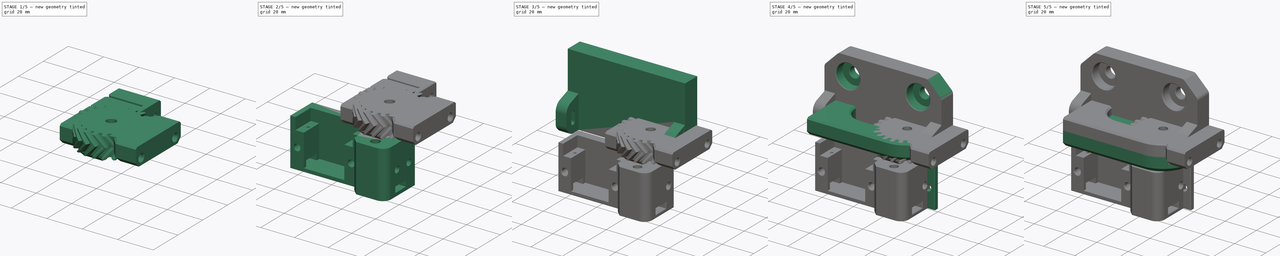
[diagram: build sequence overview — one tinted view per stage of 5, left to right]
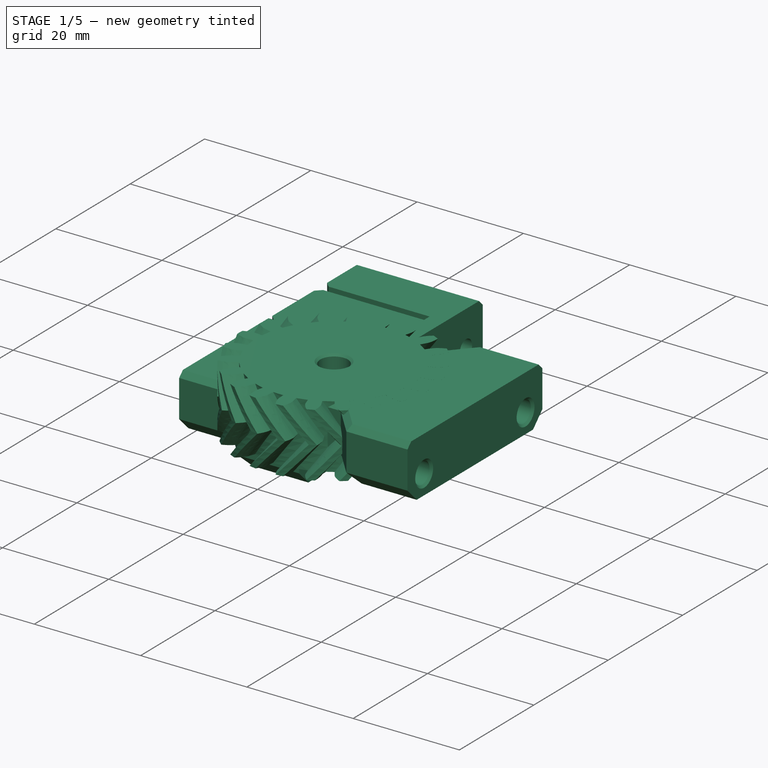
[diagram: stage 1 of 5 — iso view after this stage's code; geometry added in this stage tinted green]
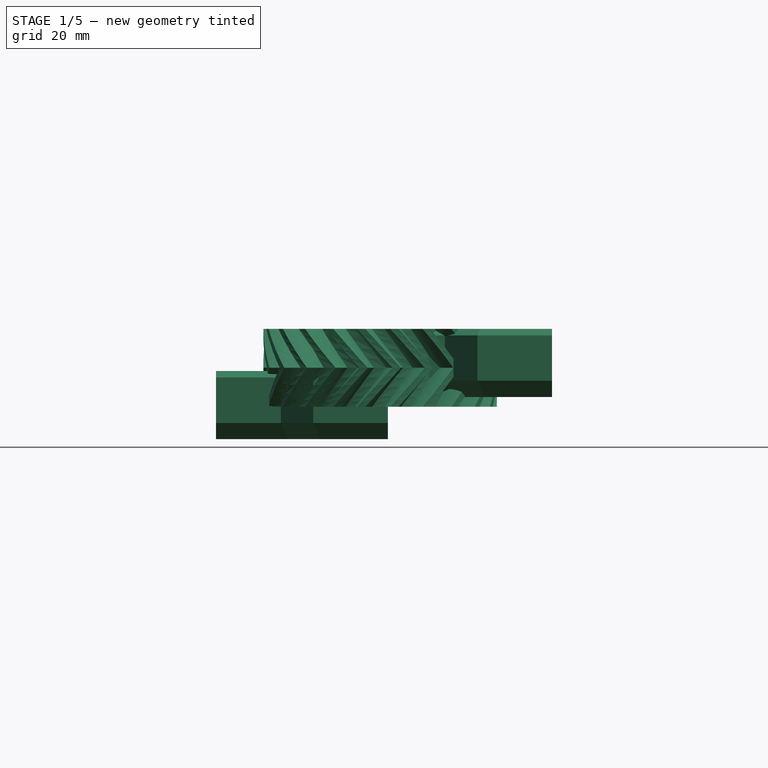
[diagram: stage 1 of 5 — front view after this stage's code; geometry added in this stage tinted green]
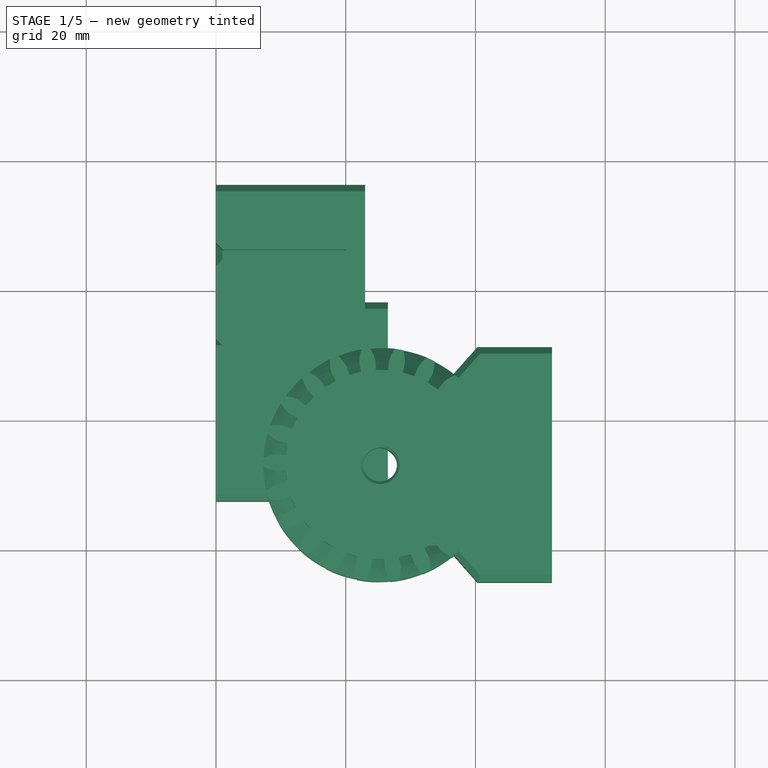
[diagram: stage 1 of 5 — top view after this stage's code; geometry added in this stage tinted green]
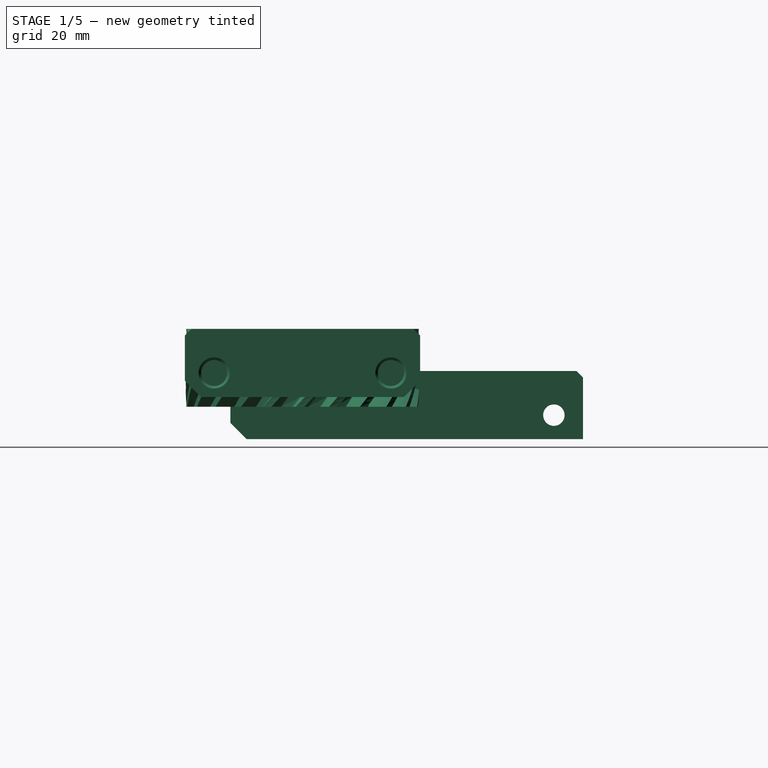
[diagram: stage 1 of 5 — right view after this stage's code; geometry added in this stage tinted green]
FCSTD DOCUMENT  (FreeCAD 0.19R24291 (Git))
Label: servo-arm
License: All rights reserved
LicenseURL: http://en.wikipedia.org/wiki/All_rights_reserved
objects: Sketcher::SketchObject×35, PartDesign::Pocket×24, PartDesign::Chamfer×23, PartDesign::Pad×12, PartDesign::Body×11, Part::Feature×6, PartDesign::Fillet×6, PartDesign::FeaturePython×2, Part::MultiFuse×2, PartDesign::FeatureBase×2, PartDesign::Plane×1
note: 189 computed .brp shape members not serialized (recipe doc carries the construction recipe); baked Part::Feature solids carry a one-line shape summary decoded from their .brp

FEATURE [PartDesign::Body] Body003  label="back-body"
  Group = -> [Sketch006,Pad003,Sketch007,Pad004,Sketch008,Pocket004,Sketch009,Pad005,Sketch021,Pocket014,Sketch022,Pocket015,Sketch023,Pocket016,Sketch024,Pocket017,Pocket018,Chamfer004,Fillet002,Chamfer005,Sketch036,Pad010,Sketch037,Pad011,Chamfer013]
  Origin = -> Origin003
  Placement = pos=(0,12,0) rot=(0,0,1;0rad)
  Tip = -> Chamfer013
FEATURE [Sketcher::SketchObject] Sketch038
  FullyConstrained = true
  MapMode = 5
  Placement = pos=(0,0,0) rot=(0.57735,0.57735,0.57735;2.0944rad)
  Support = -> [YZ_Plane009]
  sketch-geometry (4):
    g0: LineSegment StartX=0 StartY=0 StartZ=0 EndX=36.25 EndY=0 EndZ=0
    g1: LineSegment StartX=36.25 StartY=0 StartZ=0 EndX=36.25 EndY=10.5 EndZ=0
    g2: LineSegment StartX=36.25 StartY=10.5 StartZ=0 EndX=0 EndY=10.5 EndZ=0
    g3: LineSegment StartX=0 StartY=10.5 StartZ=0 EndX=0 EndY=0 EndZ=0
  constraints (11):
    c: Coincident(g0,g1)
    c: Coincident(g1,g2)
    c: Coincident(g2,g3)
    c: Coincident(g3,g0)
    c: Horizontal(g0)
    c: Horizontal(g2)
    c: Vertical(g1)
    c: Vertical(g3)
    c: Coincident(g0,g-1)
    c: DistanceX(g2,g2) = 36.25
    c: DistanceY(g1,g1) = 10.5
FEATURE [PartDesign::Pad] Pad012
  Direction = (1,1,1)
  Length = 23
  Length2 = 100
  Placement = pos=(0,0,0) rot=(0.57735,0.57735,0.57735;2.0944rad)
  Profile = -> Sketch038
  Type = 0
FEATURE [Sketcher::SketchObject] Sketch039
  ExternalGeometry = -> [Pad012]
  FullyConstrained = true
  MapMode = 5
  Placement = pos=(0,0,0) rot=(0.57735,0.57735,-0.57735;4.18879rad)
  Support = -> [Pad012]
  sketch-geometry (2):
    g0: Circle CenterX=4.5 CenterY=-3.7 CenterZ=0 NormalX=0 NormalY=0 NormalZ=1 AngleXU=0 Radius=1.65
    g1: Circle CenterX=31.75 CenterY=-3.7 CenterZ=0 NormalX=0 NormalY=0 NormalZ=1 AngleXU=0 Radius=1.65
  constraints (6):
    c: Horizontal(g0,g1)
    c: Equal(g0,g1)
    c: Radius(g0) = 1.65
    c: DistanceX(g-1,g0) = 4.5
    c: DistanceX(g1,g-3) = 4.5
    c: DistanceY(g0,g-1) = 3.7
FEATURE [PartDesign::Pocket] Pocket026
  BaseFeature = -> Pad012
  Length = 5
  Length2 = 100
  Placement = pos=(0,0,0) rot=(0.57735,0.57735,0.57735;2.0944rad)
  Profile = -> Sketch039
  Type = 1
FEATURE [Sketcher::SketchObject] Sketch040
  ExternalGeometry = -> [Pocket026]
  FullyConstrained = true
  MapMode = 5
  Placement = pos=(0,0,0) rot=(0.57735,0.57735,-0.57735;4.18879rad)
  Support = -> [Pocket026]
  sketch-geometry (12):
    g0: LineSegment StartX=10 StartY=-10.5 StartZ=0 EndX=10 EndY=-5.5 EndZ=0
    g1: LineSegment StartX=10 StartY=-5.5 StartZ=0 EndX=15 EndY=-5.5 EndZ=0
    g2: LineSegment StartX=15 StartY=-5.5 StartZ=0 EndX=15 EndY=-7 EndZ=0
    g3: LineSegment StartX=15 StartY=-7 StartZ=0 EndX=11.5 EndY=-7 EndZ=0
    g4: LineSegment StartX=11.5 StartY=-7 StartZ=0 EndX=11.5 EndY=-10.5 EndZ=0
    g5: LineSegment StartX=11.5 StartY=-10.5 StartZ=0 EndX=10 EndY=-10.5 EndZ=0
    g6: LineSegment StartX=24.75 StartY=-10.5 StartZ=0 EndX=24.75 EndY=-7 EndZ=0
    g7: LineSegment StartX=24.75 StartY=-7 StartZ=0 EndX=21.25 EndY=-7 EndZ=0
    g8: LineSegment StartX=21.25 StartY=-7 StartZ=0 EndX=21.25 EndY=-5.5 EndZ=0
    g9: LineSegment StartX=21.25 StartY=-5.5 StartZ=0 EndX=26.25 EndY=-5.5 EndZ=0
    g10: LineSegment StartX=26.25 StartY=-5.5 StartZ=0 EndX=26.25 EndY=-10.5 EndZ=0
    g11: LineSegment StartX=26.25 StartY=-10.5 StartZ=0 EndX=24.75 EndY=-10.5 EndZ=0
  constraints (36):
    c: PointOnObject(g0,g-3)
    c: Vertical(g0)
    c: Coincident(g0,g1)
    c: Horizontal(g1)
    c: Coincident(g1,g2)
    c: Vertical(g2)
    c: Coincident(g2,g3)
    c: Coincident(g3,g4)
    c: PointOnObject(g4,g-3)
    c: Coincident(g4,g5)
    c: Coincident(g5,g0)
    c: PointOnObject(g6,g-3)
    c: Coincident(g6,g7)
    c: Coincident(g7,g8)
    c: Coincident(g8,g9)
    c: Coincident(g9,g10)
    c: PointOnObject(g10,g-3)
    c: Vertical(g10)
    c: Coincident(g10,g11)
    c: Coincident(g11,g6)
    c: Horizontal(g9)
    c: Horizontal(g7)
    c: Horizontal(g3)
    c: Vertical(g4)
    c: Vertical(g6)
    c: Vertical(g8)
    c: Horizontal(g8,g1)
    c: Horizontal(g7,g2)
    c: DistanceY(g0,g0) = 5
    c: DistanceX(g5,g5) = 1.5
    c: DistanceX(g11,g11) = 1.5
    c: DistanceY(g2,g2) = 1.5
    c: DistanceX(g-3,g0) = 10
    c: DistanceX(g10,g-3) = 10
    c: DistanceX(g1,g1) = 5
    c: DistanceX(g9,g9) = 5
FEATURE [PartDesign::Pocket] Pocket027
  BaseFeature = -> Pocket026
  Length = 20
  Length2 = 100
  Placement = pos=(0,0,0) rot=(0.57735,0.57735,0.57735;2.0944rad)
  Profile = -> Sketch040
  Type = 0
FEATURE [PartDesign::Chamfer] Chamfer014
  Angle = 45
  Base = -> Pocket027 [Edge22,Edge21,Edge20,Edge19,Edge18,Edge14,Edge15,Edge13,Edge12,Edge16]
  BaseFeature = -> Pocket027
  ChamferType = 0
  FlipDirection = false
  Placement = pos=(0,0,0) rot=(0.57735,0.57735,0.57735;2.0944rad)
  Size = 1
  Size2 = 1
  SupportTransform = false
FEATURE [PartDesign::Chamfer] Chamfer015
  Angle = 45
  Base = -> Chamfer014 [Edge20,Edge24]
  BaseFeature = -> Chamfer014
  ChamferType = 0
  FlipDirection = false
  Placement = pos=(0,0,0) rot=(0.57735,0.57735,0.57735;2.0944rad)
  Size = 1
  Size2 = 1
  SupportTransform = false
FEATURE [PartDesign::Body] Body004006  label="nozzle-brush"
  Group = -> [Sketch038,Pad012,Sketch039,Pocket026,Sketch040,Pocket027,Chamfer014,Chamfer015,Chamfer016,Chamfer017,Chamfer018]
  Origin = -> Origin009
  Placement = pos=(-66.5,-26,6.5) rot=(0,0,1;0rad)
  Tip = -> Chamfer018
FEATURE [Sketcher::SketchObject] Sketch041
  FullyConstrained = true
  MapMode = 5
  Support = -> [XY_Plane010]
  sketch-geometry (8):
    g0: LineSegment StartX=26.5 StartY=18.125 StartZ=0 EndX=26.5 EndY=-18.125 EndZ=0
    g1: LineSegment StartX=26.5 StartY=18.125 StartZ=0 EndX=15 EndY=18.125 EndZ=0
    g2: LineSegment StartX=26.5 StartY=-18.125 StartZ=0 EndX=15 EndY=-18.125 EndZ=0
    g3: LineSegment StartX=10 StartY=12.5 StartZ=0 EndX=0 EndY=12.5 EndZ=0
    g4: LineSegment StartX=0 StartY=12.5 StartZ=0 EndX=0 EndY=-12.5 EndZ=0
    g5: LineSegment StartX=0 StartY=-12.5 StartZ=0 EndX=10 EndY=-12.5 EndZ=0
    g6: LineSegment StartX=10 StartY=12.5 StartZ=0 EndX=15 EndY=18.125 EndZ=0
    g7: LineSegment StartX=10 StartY=-12.5 StartZ=0 EndX=15 EndY=-18.125 EndZ=0
  constraints (24):
    c: Vertical(g0)
    c: DistanceY(g0,g0) = 36.25
    c: DistanceY(g-1,g0) = 18.125
    c: Coincident(g1,g0)
    c: Horizontal(g1)
    c: Coincident(g2,g0)
    c: Horizontal(g2)
    c: Vertical(g2,g1)
    c: PointOnObject(g3,g-2)
    c: Horizontal(g3)
    c: Coincident(g3,g4)
    c: PointOnObject(g4,g-2)
    c: Coincident(g4,g5)
    c: Horizontal(g5)
    c: DistanceX(g1,g1) = 11.5
    c: DistanceX(g3,g3) = 10
    c: DistanceY(g4,g4) = 25
    c: Coincident(g6,g3)
    c: Coincident(g6,g1)
    c: Coincident(g7,g5)
    c: Coincident(g7,g2)
    c: DistanceY(g-1,g3) = 12.5
    c: Vertical(g5,g3)
    c: DistanceX(g3,g1) = 5
FEATURE [PartDesign::Pad] Pad013
  Direction = (1,1,1)
  Length = 10.5
  Length2 = 100
  Profile = -> Sketch041
  Type = 0
FEATURE [Sketcher::SketchObject] Sketch042
  ExternalGeometry = -> [Pad013]
  FullyConstrained = true
  MapMode = 5
  Placement = pos=(26.5,0,0) rot=(0.57735,0.57735,0.57735;2.0944rad)
  Support = -> [Pad013]
  sketch-geometry (2):
    g0: Circle CenterX=-13.625 CenterY=3.7 CenterZ=0 NormalX=0 NormalY=0 NormalZ=1 AngleXU=0 Radius=2
    g1: Circle CenterX=13.625 CenterY=3.7 CenterZ=0 NormalX=0 NormalY=0 NormalZ=1 AngleXU=0 Radius=2
  constraints (6):
    c: Horizontal(g1,g0)
    c: DistanceY(g-1,g0) = 3.7
    c: DistanceX(g-3,g0) = 4.5
    c: DistanceX(g1,g-4) = 4.5
    c: Equal(g1,g0)
    c: Radius(g0) = 2
FEATURE [PartDesign::Pocket] Pocket028
  BaseFeature = -> Pad013
  Length = 7
  Length2 = 100
  Profile = -> Sketch042
  Type = 0
FEATURE [PartDesign::Chamfer] Chamfer019
  Angle = 45
  Base = -> Pocket028 [Edge17,Edge18,Edge19,Edge7,Edge4,Edge10]
  BaseFeature = -> Pocket028
  ChamferType = 0
  FlipDirection = false
  Size = 1
  Size2 = 1
  SupportTransform = false
FEATURE [PartDesign::Chamfer] Chamfer020
  Angle = 45
  Base = -> Chamfer019 [Edge15,Edge14,Edge13,Edge6,Edge3,Edge11]
  BaseFeature = -> Chamfer019
  ChamferType = 0
  FlipDirection = false
  Size = 2.5
  Size2 = 1
  SupportTransform = false
FEATURE [PartDesign::Body] Body004007  label="arm-rev"
  Group = -> [Sketch041,Pad013,Sketch042,Pocket028,Chamfer019,Chamfer020]
  Origin = -> Origin010
  Placement = pos=(25.3,-7,6.5) rot=(0,0,1;0rad)
  Tip = -> Chamfer020
FEATURE [Part::Feature] Body004007001  label="arm-rev001"
  Placement = pos=(25.3,-7,6.5) rot=(0,0,1;0rad)
  shape: bbox 26.5 x 36.25 x 10.5 mm, 26 faces (baked)
FEATURE [Part::Feature] Body001002  label="big-gear002"
  Placement = pos=(25.3,-7,17) rot=(0,1,0;3.14159rad)
  shape: bbox 36.07 x 36.1 x 12.01 mm, 266 faces (baked)
FEATURE [Part::MultiFuse] Fusion002  label="arm-gear-rev-baseFusion"
  Shapes = -> [Body004007001,Body001002]
FEATURE [PartDesign::FeatureBase] BaseFeature001
  BaseFeature = -> Fusion002
FEATURE [Sketcher::SketchObject] Sketch043
  FullyConstrained = true
  MapMode = 5
  Placement = pos=(-0.0030709,0.000967847,16.9969) rot=(-0.300592,-0.953753,2.7e-05;0.000189rad)
  Support = -> [BaseFeature001]
  sketch-geometry (1):
    g0: Circle CenterX=25.3 CenterY=-7 CenterZ=0 NormalX=0 NormalY=0 NormalZ=1 AngleXU=0 Radius=2.6
  constraints (3):
    c: Radius(g0) = 2.6
    c: DistanceX(g-1,g0) = 25.3
    c: DistanceY(g0,g-1) = 7
FEATURE [PartDesign::Pocket] Pocket029
  BaseFeature = -> BaseFeature001
  Length = 5
  Length2 = 100
  Profile = -> Sketch043
  Type = 1
FEATURE [PartDesign::Chamfer] Chamfer021
  Angle = 45
  Base = -> Pocket029 [Edge601,Edge264]
  BaseFeature = -> Pocket029
  ChamferType = 0
  FlipDirection = false
  Size = 0.4
  Size2 = 1
  SupportTransform = false
FEATURE [PartDesign::Chamfer] Chamfer022
  Angle = 45
  Base = -> Chamfer021 [Edge686,Edge685]
  BaseFeature = -> Chamfer021
  ChamferType = 0
  FlipDirection = false
  Size = 0.4
  Size2 = 1
  SupportTransform = false
FEATURE [PartDesign::Body] Body004007002  label="arm-gear-rev"
  BaseFeature = -> Fusion002
  Group = -> [BaseFeature001,Sketch043,Pocket029,Chamfer021,Chamfer022]
  Origin = -> Origin011
  Tip = -> Chamfer022
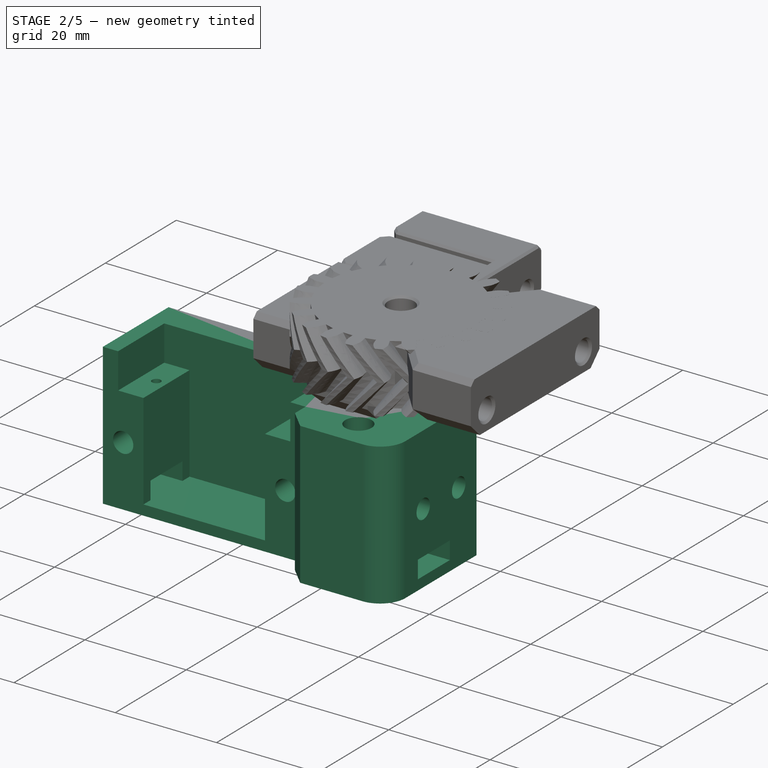
[diagram: stage 2 of 5 — iso view after this stage's code; geometry added in this stage tinted green]
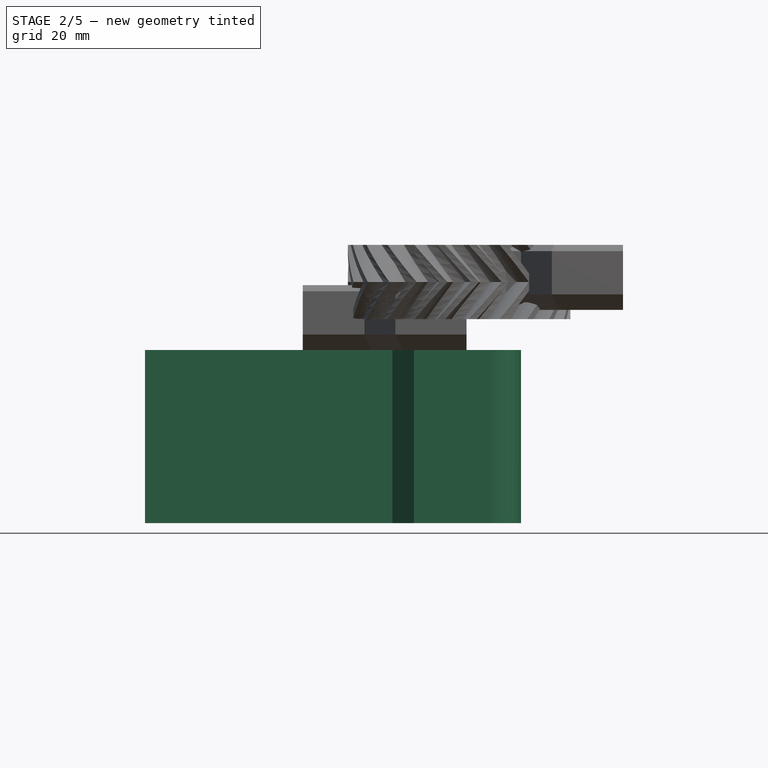
[diagram: stage 2 of 5 — front view after this stage's code; geometry added in this stage tinted green]
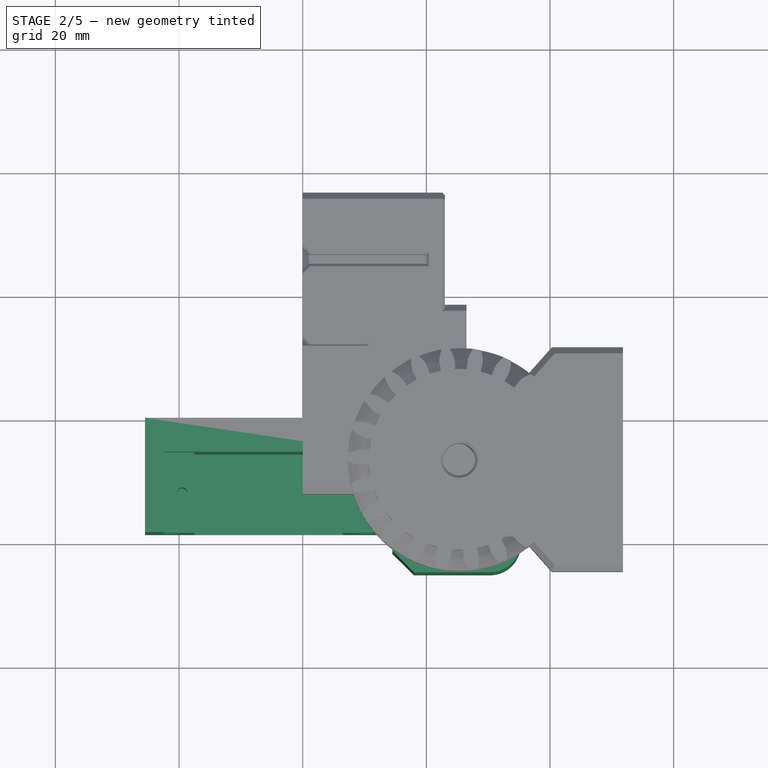
[diagram: stage 2 of 5 — top view after this stage's code; geometry added in this stage tinted green]
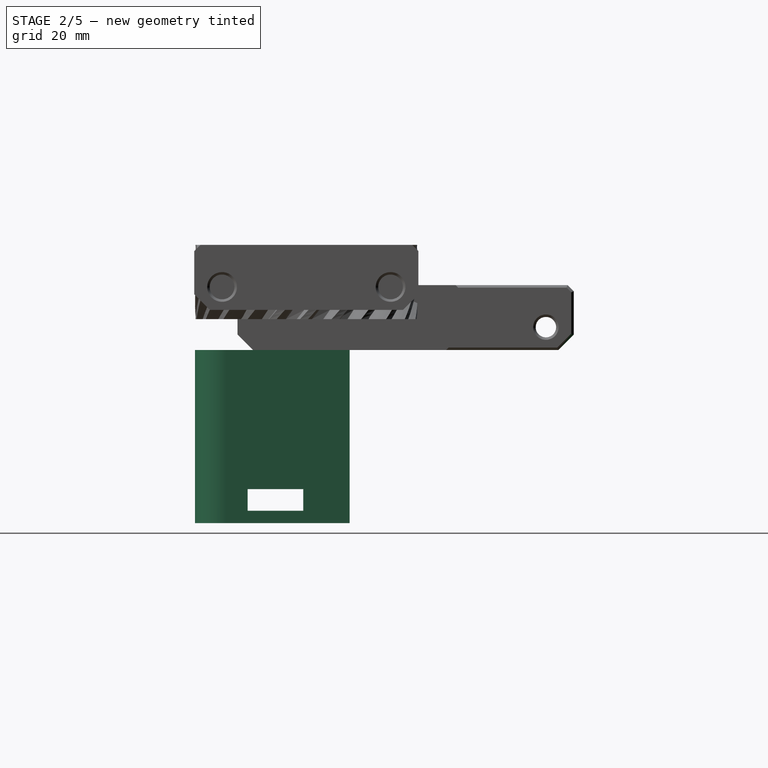
[diagram: stage 2 of 5 — right view after this stage's code; geometry added in this stage tinted green]
FEATURE [Sketcher::SketchObject] Sketch006
  FullyConstrained = true
  MapMode = 5
  Placement = pos=(0,0,0) rot=(1,0,0;1.5708rad)
  Support = -> [XZ_Plane003]
  sketch-geometry (4):
    g0: LineSegment StartX=-25.5 StartY=0 StartZ=0 EndX=14.5 EndY=0 EndZ=0
    g1: LineSegment StartX=14.5 StartY=0 StartZ=0 EndX=14.5 EndY=-28 EndZ=0
    g2: LineSegment StartX=14.5 StartY=-28 StartZ=0 EndX=-25.5 EndY=-28 EndZ=0
    g3: LineSegment StartX=-25.5 StartY=-28 StartZ=0 EndX=-25.5 EndY=0 EndZ=0
  constraints (12):
    c: Coincident(g0,g1)
    c: Coincident(g1,g2)
    c: Coincident(g2,g3)
    c: Coincident(g3,g0)
    c: Horizontal(g0)
    c: Horizontal(g2)
    c: Vertical(g1)
    c: Vertical(g3)
    c: PointOnObject(g0,g-1)
    c: DistanceX(g2,g2) = 40
    c: DistanceY(g3,g3) = 28
    c: DistanceX(g-1,g0) = 14.5
FEATURE [Part::Feature] Fusion001  label="servo_pref"
  Placement = pos=(-5.5,-2e-15,-24.5) rot=(0,0.707107,0.707107;3.14159rad)
  shape: bbox 32.21 x 13.37 x 32.21 mm, 244 faces (baked)
FEATURE [PartDesign::Pad] Pad003
  Direction = (1,1,1)
  Length = 5.5
  Length2 = 100
  Placement = pos=(0,0,0) rot=(1,0,0;1.5708rad)
  Profile = -> Sketch006
  Type = 0
FEATURE [Sketcher::SketchObject] Sketch007
  ExternalGeometry = -> [Pad003]
  FullyConstrained = true
  MapMode = 5
  Placement = pos=(0,-5.5,1.2e-15) rot=(1,0,0;1.5708rad)
  Support = -> [Pad003]
  sketch-geometry (12):
    g0: LineSegment StartX=-25.5 StartY=-28 StartZ=0 EndX=14.5 EndY=-28 EndZ=0
    g1: LineSegment StartX=-25.5 StartY=0 StartZ=0 EndX=-22.5 EndY=0 EndZ=0
    g2: LineSegment StartX=-22.5 StartY=0 StartZ=0 EndX=-22.5 EndY=-7 EndZ=0
    g3: LineSegment StartX=-22.5 StartY=-7 StartZ=0 EndX=-17.5 EndY=-7 EndZ=0
    g4: LineSegment StartX=-17.5 StartY=-7 StartZ=0 EndX=-17.5 EndY=-26 EndZ=0
    g5: LineSegment StartX=-25.5 StartY=-28 StartZ=0 EndX=-25.5 EndY=0 EndZ=0
    g6: LineSegment StartX=11.5 StartY=0 StartZ=0 EndX=14.5 EndY=0 EndZ=0
    g7: LineSegment StartX=14.5 StartY=0 StartZ=0 EndX=14.5 EndY=-28 EndZ=0
    g8: LineSegment StartX=6.5 StartY=-26 StartZ=0 EndX=6.5 EndY=-7 EndZ=0
    g9: LineSegment StartX=6.5 StartY=-7 StartZ=0 EndX=11.5 EndY=-7 EndZ=0
    g10: LineSegment StartX=11.5 StartY=-7 StartZ=0 EndX=11.5 EndY=0 EndZ=0
    g11: LineSegment StartX=-17.5 StartY=-26 StartZ=0 EndX=6.5 EndY=-26 EndZ=0
  constraints (33):
    c: Horizontal(g0)
    c: Coincident(g0,g-4)
    c: Coincident(g-3,g1)
    c: PointOnObject(g1,g-1)
    c: Coincident(g1,g2)
    c: Vertical(g2)
    c: Coincident(g2,g3)
    c: Horizontal(g3)
    c: Coincident(g3,g4)
    c: Vertical(g4)
    c: Coincident(g5,g1)
    c: PointOnObject(g6,g-1)
    c: Coincident(g6,g-5)
    c: Coincident(g6,g7)
    c: PointOnObject(g7,g-5)
    c: Vertical(g8)
    c: Coincident(g8,g9)
    c: Coincident(g9,g10)
    c: Coincident(g10,g6)
    c: Horizontal(g9)
    c: Vertical(g10)
    c: DistanceX(g1,g1) = 3
    c: DistanceX(g6,g6) = 3
    c: Horizontal(g3,g8)
    c: DistanceY(g2,g2) = 7
    c: DistanceX(g3,g3) = 5
    c: DistanceX(g9,g9) = 5
    c: Horizontal(g4,g8)
    c: Coincident(g5,g0)
    c: Coincident(g7,g0)
    c: Coincident(g11,g4)
    c: Coincident(g11,g8)
    c: DistanceY(g0,g4) = 2
FEATURE [PartDesign::Pad] Pad004
  BaseFeature = -> Pad003
  Direction = (1,1,1)
  Length = 13
  Length2 = 100
  Placement = pos=(0,0,0) rot=(1,0,0;1.5708rad)
  Profile = -> Sketch007
  Type = 0
FEATURE [Sketcher::SketchObject] Sketch008
  FullyConstrained = true
  MapMode = 5
  Placement = pos=(0,-2.3e-15,-7) rot=(0,0,1;3.14159rad)
  Support = -> [Pad004]
  sketch-geometry (2):
    g0: Circle CenterX=-8.5 CenterY=12 CenterZ=0 NormalX=0 NormalY=0 NormalZ=1 AngleXU=0 Radius=0.85
    g1: Circle CenterX=19.5 CenterY=12 CenterZ=0 NormalX=0 NormalY=0 NormalZ=1 AngleXU=0 Radius=0.85
  constraints (6):
    c: Horizontal(g1,g0)
    c: DistanceY(g-1,g0) = 12
    c: Equal(g1,g0)
    c: Radius(g0) = 0.85
    c: DistanceX(g0,g-1) = 8.5
    c: DistanceX(g-1,g1) = 19.5
FEATURE [PartDesign::Pocket] Pocket004
  BaseFeature = -> Pad004
  Length = 10
  Length2 = 100
  Placement = pos=(0,0,0) rot=(1,0,0;1.5708rad)
  Profile = -> Sketch008
  Type = 0
FEATURE [Sketcher::SketchObject] Sketch009
  ExternalGeometry = -> [Pocket004]
  FullyConstrained = true
  MapMode = 5
  Placement = pos=(0,0,0) rot=(0,0,1;3.14159rad)
  Support = -> [Pocket004]
  sketch-geometry (9):
    g0: GeomPoint X=0 Y=12 Z=0
    g1: Circle CenterX=-25.2995 CenterY=19 CenterZ=0 NormalX=0 NormalY=0 NormalZ=1 AngleXU=0 Radius=16.5
    g2: LineSegment StartX=-25.2995 StartY=19 StartZ=0 EndX=0 EndY=12 EndZ=0
    g3: LineSegment StartX=-14.5 StartY=0 StartZ=0 EndX=-35.2995 EndY=0 EndZ=0
    g4: LineSegment StartX=-35.2995 StartY=0 StartZ=0 EndX=-35.2995 EndY=29 EndZ=0
    g5: LineSegment StartX=-35.2995 StartY=29 StartZ=0 EndX=-14.5 EndY=29 EndZ=0
    g6: LineSegment StartX=-14.5 StartY=18.5 StartZ=0 EndX=-14.5 EndY=0 EndZ=0
    g7: Circle CenterX=-25.2995 CenterY=19 CenterZ=0 NormalX=0 NormalY=0 NormalZ=1 AngleXU=0 Radius=2.6
    g8: LineSegment StartX=-14.5 StartY=29 StartZ=0 EndX=-14.5 EndY=18.5 EndZ=0
  constraints (22):
    c: PointOnObject(g0,g-2)
    c: DistanceY(g-1,g0) = 12
    c: Coincident(g2,g1)
    c: Coincident(g2,g0)
    c: Distance(g2) = 26.25
    c: Radius(g1) = 16.5
    c: DistanceY(g-1,g1) = 19
    c: Coincident(g-3,g3)
    c: PointOnObject(g3,g-1)
    c: Coincident(g3,g4)
    c: Vertical(g4)
    c: Coincident(g4,g5)
    c: Horizontal(g5)
    c: Coincident(g6,g3)
    c: DistanceX(g4,g1) = 10
    c: DistanceY(g1,g4) = 10
    c: Coincident(g7,g1)
    c: Radius(g7) = 2.6
    c: Coincident(g8,g5)
    c: Coincident(g8,g6)
    c: Coincident(g6,g-4)
    c: Vertical(g8)
FEATURE [PartDesign::Pad] Pad005
  BaseFeature = -> Pocket004
  Direction = (1,1,1)
  Length = 10
  Length2 = 100
  Placement = pos=(0,0,0) rot=(1,0,0;1.5708rad)
  Profile = -> Sketch009
  Refine = true
  Reversed = true
  Type = 3
  UpToFace = -> Pocket004 [Face19]
FEATURE [Sketcher::SketchObject] Sketch021
  ExternalGeometry = -> [Pad005]
  FullyConstrained = true
  MapMode = 5
  Placement = pos=(0,-18.5,8.1e-15) rot=(1,0,0;1.5708rad)
  Support = -> [Pad005]
  sketch-geometry (2):
    g0: Circle CenterX=-21.5 CenterY=-16 CenterZ=0 NormalX=0 NormalY=0 NormalZ=1 AngleXU=0 Radius=2
    g1: Circle CenterX=10.5 CenterY=-16 CenterZ=0 NormalX=0 NormalY=0 NormalZ=1 AngleXU=0 Radius=2
  constraints (6):
    c: Horizontal(g1,g0)
    c: Equal(g0,g1)
    c: Radius(g0) = 2
    c: DistanceX(g-4,g0) = 4
    c: DistanceX(g1,g-3) = 4
    c: DistanceY(g-4,g0) = 12
FEATURE [PartDesign::Pocket] Pocket014
  BaseFeature = -> Pad005
  Length = 5
  Length2 = 100
  Placement = pos=(0,0,0) rot=(1,0,0;1.5708rad)
  Profile = -> Sketch021
  Type = 0
FEATURE [Sketcher::SketchObject] Sketch022
  FullyConstrained = true
  MapMode = 5
  Placement = pos=(-25.5,-2.3e-15,1.8e-15) rot=(-0.707107,0,0.707107;3.14159rad)
  Support = -> [Pocket014]
  sketch-geometry (4):
    g0: LineSegment StartX=26 StartY=16.5 StartZ=0 EndX=22.5 EndY=16.5 EndZ=0
    g1: LineSegment StartX=22.5 StartY=16.5 StartZ=0 EndX=22.5 EndY=7.5 EndZ=0
    g2: LineSegment StartX=22.5 StartY=7.5 StartZ=0 EndX=26 EndY=7.5 EndZ=0
    g3: LineSegment StartX=26 StartY=7.5 StartZ=0 EndX=26 EndY=16.5 EndZ=0
  constraints (12):
    c: Coincident(g0,g1)
    c: Coincident(g1,g2)
    c: Coincident(g2,g3)
    c: Coincident(g3,g0)
    c: Horizontal(g0)
    c: Horizontal(g2)
    c: Vertical(g1)
    c: Vertical(g3)
    c: DistanceY(g-1,g2) = 7.5
    c: DistanceY(g3,g3) = 9
    c: DistanceX(g0,g0) = 3.5
    c: DistanceX(g-1,g1) = 22.5
FEATURE [PartDesign::Pocket] Pocket015
  BaseFeature = -> Pocket014
  Length = 5
  Length2 = 100
  Placement = pos=(0,0,0) rot=(1,0,0;1.5708rad)
  Profile = -> Sketch022
  Type = 1
FEATURE [Sketcher::SketchObject] Sketch023
  ExternalGeometry = -> [Pocket015]
  FullyConstrained = true
  MapMode = 5
  Placement = pos=(-25.5,-2.3e-15,1.8e-15) rot=(-0.707107,0,0.707107;3.14159rad)
  Support = -> [Pocket015]
  sketch-geometry (1):
    g0: Circle CenterX=14 CenterY=5 CenterZ=0 NormalX=0 NormalY=0 NormalZ=1 AngleXU=0 Radius=1.9
  constraints (3):
    c: DistanceX(g-3,g0) = 14
    c: DistanceY(g-1,g0) = 5
    c: Radius(g0) = 1.9
FEATURE [PartDesign::Pocket] Pocket016
  BaseFeature = -> Pocket015
  Length = 7
  Length2 = 100
  Placement = pos=(0,0,0) rot=(1,0,0;1.5708rad)
  Profile = -> Sketch023
  Type = 0
FEATURE [Sketcher::SketchObject] Sketch024
  FullyConstrained = true
  MapMode = 5
  Placement = pos=(35.2995,0,0) rot=(0.707107,0,0.707107;3.14159rad)
  Support = -> [Pocket016]
  sketch-geometry (2):
    g0: Circle CenterX=-14 CenterY=5 CenterZ=0 NormalX=0 NormalY=0 NormalZ=1 AngleXU=0 Radius=1.9
    g1: Circle CenterX=-14 CenterY=15 CenterZ=0 NormalX=0 NormalY=0 NormalZ=1 AngleXU=0 Radius=1.9
  constraints (6):
    c: DistanceY(g-1,g0) = 5
    c: Radius(g0) = 1.9
    c: DistanceX(g0,g-1) = 14
    c: Vertical(g1,g0)
    c: Equal(g1,g0)
    c: DistanceY(g0,g1) = 10
FEATURE [PartDesign::Pocket] Pocket017
  BaseFeature = -> Pocket016
  Length = 7
  Length2 = 100
  Placement = pos=(0,0,0) rot=(1,0,0;1.5708rad)
  Profile = -> Sketch024
  Type = 0
FEATURE [PartDesign::Pocket] Pocket018
  BaseFeature = -> Pocket017
  Length = 4
  Length2 = 100
  Placement = pos=(0,0,0) rot=(1,0,0;1.5708rad)
  Profile = -> Pocket017 [Face4]
  Type = 0
FEATURE [PartDesign::Chamfer] Chamfer004
  Angle = 45
  Base = -> Pocket018 [Edge21]
  BaseFeature = -> Pocket018
  ChamferType = 0
  FlipDirection = false
  Placement = pos=(0,0,0) rot=(1,0,0;1.5708rad)
  Size = 3.5
  Size2 = 1
  SupportTransform = false
FEATURE [PartDesign::Fillet] Fillet002
  Base = -> Chamfer004 [Edge14]
  BaseFeature = -> Chamfer004
  Placement = pos=(0,0,0) rot=(1,0,0;1.5708rad)
  Radius = 5
  Refine = true
  SupportTransform = false
FEATURE [PartDesign::Chamfer] Chamfer016
  Angle = 45
  Base = -> Chamfer015 [Edge42,Edge38]
  BaseFeature = -> Chamfer015
  ChamferType = 0
  FlipDirection = false
  Placement = pos=(0,0,0) rot=(0.57735,0.57735,0.57735;2.0944rad)
  Size = 2.5
  Size2 = 1
  SupportTransform = false
FEATURE [PartDesign::Chamfer] Chamfer017
  Angle = 45
  Base = -> Chamfer016 [Edge35,Edge33,Edge39,Edge37,Edge36,Edge41,Edge43,Edge42,Edge38,Edge40]
  BaseFeature = -> Chamfer016
  ChamferType = 0
  FlipDirection = false
  Placement = pos=(0,0,0) rot=(0.57735,0.57735,0.57735;2.0944rad)
  Size = 0.4
  Size2 = 1
  SupportTransform = false
FEATURE [PartDesign::Chamfer] Chamfer018
  Angle = 45
  Base = -> Chamfer017 [Face27]
  BaseFeature = -> Chamfer017
  ChamferType = 0
  FlipDirection = false
  Placement = pos=(0,0,0) rot=(0.57735,0.57735,0.57735;2.0944rad)
  Size = 0.4
  Size2 = 1
  SupportTransform = false
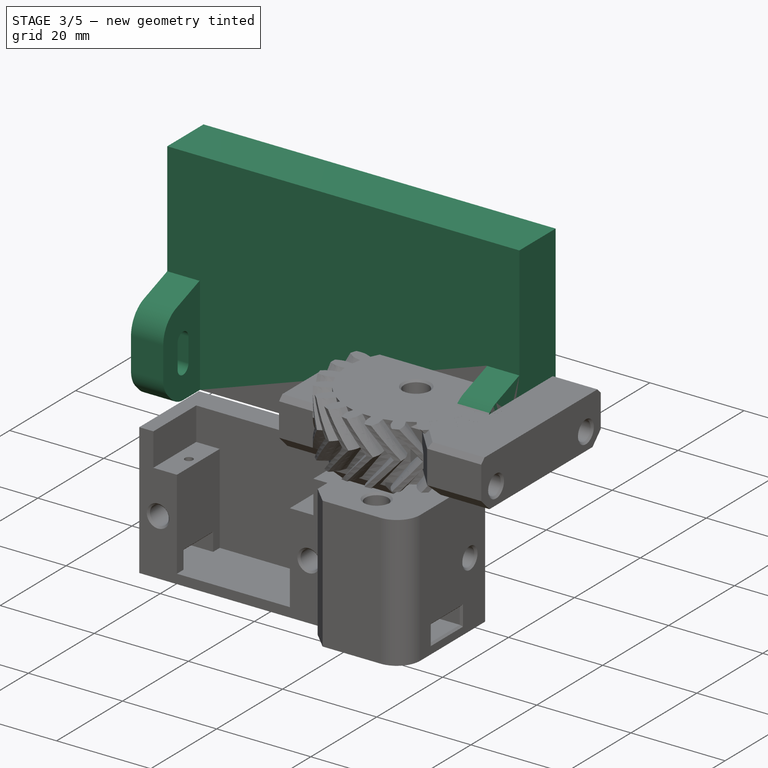
[diagram: stage 3 of 5 — iso view after this stage's code; geometry added in this stage tinted green]
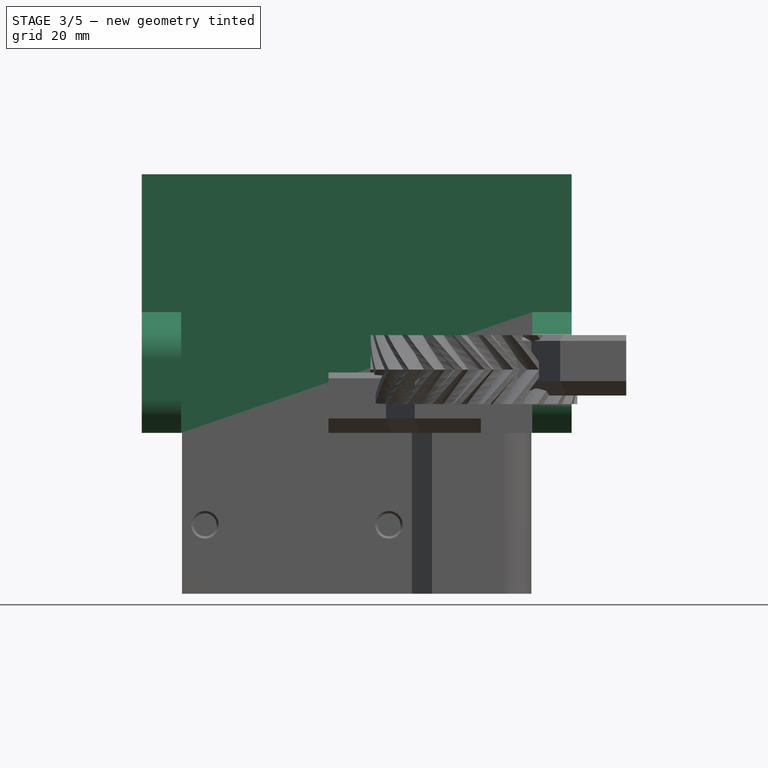
[diagram: stage 3 of 5 — front view after this stage's code; geometry added in this stage tinted green]
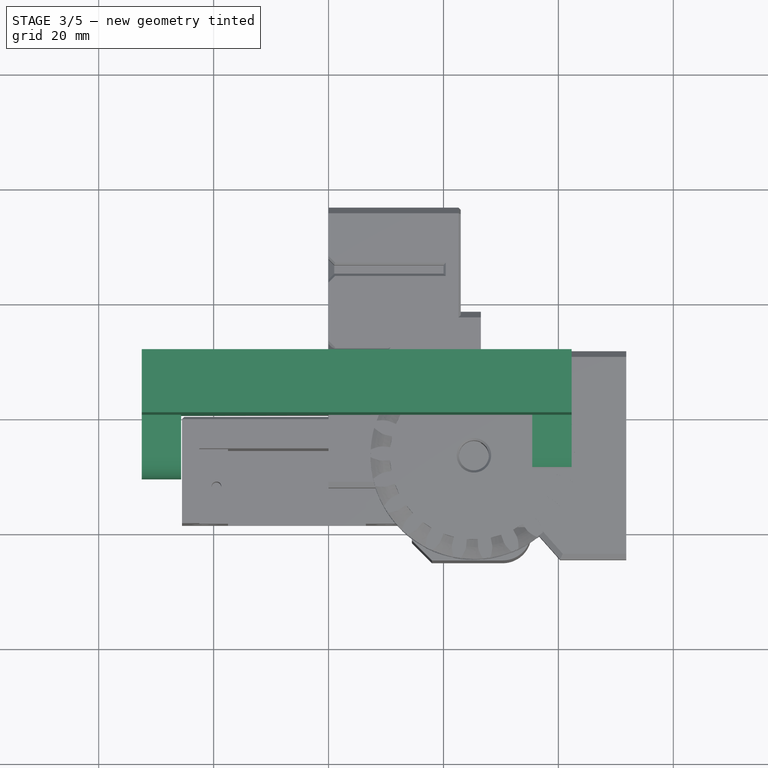
[diagram: stage 3 of 5 — top view after this stage's code; geometry added in this stage tinted green]
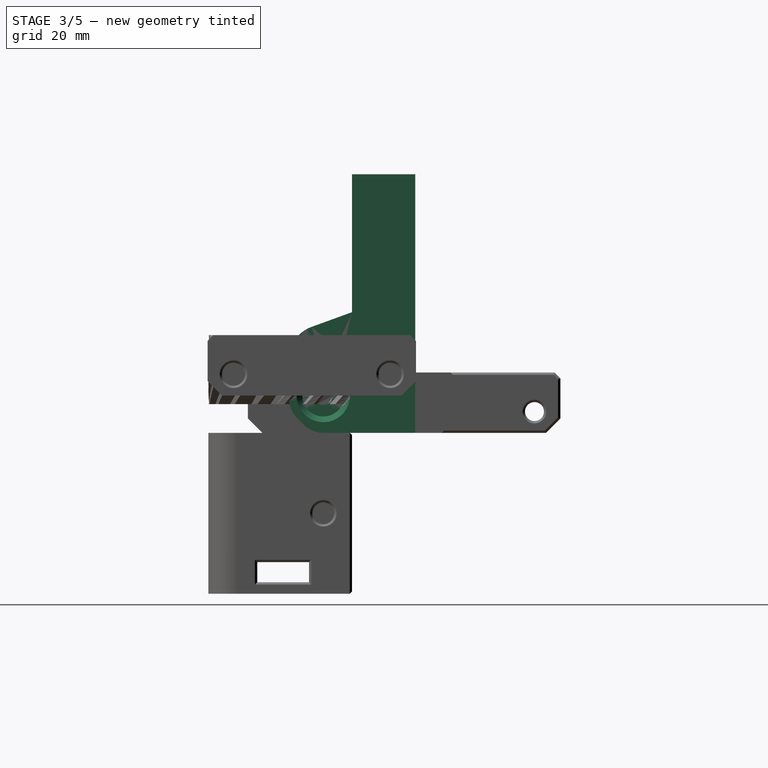
[diagram: stage 3 of 5 — right view after this stage's code; geometry added in this stage tinted green]
FEATURE [PartDesign::Chamfer] Chamfer005
  Angle = 45
  Base = -> Fillet002 [Face7,Edge28,Edge27,Edge13,Edge45,Edge42,Edge43,Edge48,Edge47,Edge46,Edge49,Edge26,Edge24,Edge23,Edge25,Edge80,Edge67]
  BaseFeature = -> Fillet002
  ChamferType = 0
  FlipDirection = false
  Placement = pos=(0,0,0) rot=(1,0,0;1.5708rad)
  Size = 0.4
  Size2 = 1
  SupportTransform = false
FEATURE [PartDesign::Body] Body004004  label="front-lid"
  Group = -> [Sketch027,Pad007,Chamfer007]
  Origin = -> Origin007
  Placement = pos=(-25.5,-6.5,0) rot=(0,0,1;0rad)
  Tip = -> Chamfer007
FEATURE [Sketcher::SketchObject] Sketch028
  FullyConstrained = true
  MapMode = 5
  Support = -> [XY_Plane008]
  sketch-geometry (8):
    g0: LineSegment StartX=-25.65 StartY=-11 StartZ=0 EndX=-25.65 EndY=0.15 EndZ=0
    g1: LineSegment StartX=-25.65 StartY=0.15 StartZ=0 EndX=35.45 EndY=0.15 EndZ=0
    g2: LineSegment StartX=35.45 StartY=0.15 StartZ=0 EndX=35.45 EndY=-11 EndZ=0
    g3: LineSegment StartX=35.45 StartY=-11 StartZ=0 EndX=42.3 EndY=-11 EndZ=0
    g4: LineSegment StartX=42.3 StartY=-11 StartZ=0 EndX=42.3 EndY=11 EndZ=0
    g5: LineSegment StartX=42.3 StartY=11 StartZ=0 EndX=-32.5 EndY=11 EndZ=0
    g6: LineSegment StartX=-32.5 StartY=11 StartZ=0 EndX=-32.5 EndY=-11 EndZ=0
    g7: LineSegment StartX=-32.5 StartY=-11 StartZ=0 EndX=-25.65 EndY=-11 EndZ=0
  constraints (24):
    c: Vertical(g0)
    c: Coincident(g0,g1)
    c: Horizontal(g1)
    c: Coincident(g1,g2)
    c: Vertical(g2)
    c: Coincident(g2,g3)
    c: Horizontal(g3)
    c: Coincident(g3,g4)
    c: Vertical(g4)
    c: Coincident(g4,g5)
    c: Horizontal(g5)
    c: Coincident(g5,g6)
    c: Vertical(g6)
    c: DistanceY(g-1,g0) = 0.15
    c: DistanceX(g0,g-1) = 25.65
    c: DistanceX(g1,g1) = 61.1
    c: DistanceX(g3,g3) = 6.85
    c: DistanceY(g-1,g5) = 11
    c: Horizontal(g0,g2)
    c: Coincident(g6,g7)
    c: Coincident(g7,g0)
    c: Horizontal(g7)
    c: DistanceX(g7,g7) = 6.85
    c: DistanceY(g6,g-1) = 11
FEATURE [PartDesign::Pad] Pad008
  Direction = (1,1,1)
  Length = 21
  Length2 = 100
  Profile = -> Sketch028
  Type = 0
FEATURE [Sketcher::SketchObject] Sketch029
  FullyConstrained = true
  MapMode = 5
  Placement = pos=(-32.5,0,0) rot=(0.57735,-0.57735,-0.57735;2.0944rad)
  Support = -> [Pad008]
  sketch-geometry (4):
    g0: ArcOfCircle CenterX=5 CenterY=6.5 CenterZ=0 NormalX=0 NormalY=0 NormalZ=1 AngleXU=0 Radius=1.65 StartAngle=3.14159 EndAngle=6.28319
    g1: ArcOfCircle CenterX=5 CenterY=11.5 CenterZ=0 NormalX=0 NormalY=0 NormalZ=1 AngleXU=0 Radius=1.65 StartAngle=4e-16 EndAngle=3.14159
    g2: LineSegment StartX=6.65 StartY=6.5 StartZ=0 EndX=6.65 EndY=11.5 EndZ=0
    g3: LineSegment StartX=3.35 StartY=6.5 StartZ=0 EndX=3.35 EndY=11.5 EndZ=0
  constraints (10):
    c: Tangent(g0,g3) = 1.5708
    c: Tangent(g0,g2) = -1.5708
    c: Tangent(g2,g1) = -1.5708
    c: Tangent(g3,g1) = 1.5708
    c: Vertical(g2)
    c: Equal(g0,g1)
    c: Radius(g0) = 1.65
    c: DistanceX(g-1,g0) = 5
    c: DistanceY(g-1,g0) = 6.5
    c: DistanceY(g0,g1) = 5
FEATURE [PartDesign::Pocket] Pocket020
  BaseFeature = -> Pad008
  Length = 10
  Length2 = 100
  Profile = -> Sketch029
  Type = 1
FEATURE [Sketcher::SketchObject] Sketch030
  ExternalGeometry = -> [Pocket020]
  FullyConstrained = true
  MapMode = 5
  Placement = pos=(-32.5,0,0) rot=(0.57735,-0.57735,-0.57735;2.0944rad)
  Support = -> [Pocket020]
  sketch-geometry (4):
    g0: ArcOfCircle CenterX=5 CenterY=11.5 CenterZ=0 NormalX=0 NormalY=0 NormalZ=1 AngleXU=0 Radius=3.65 StartAngle=1.491e-13 EndAngle=3.14159
    g1: ArcOfCircle CenterX=5 CenterY=6.5 CenterZ=0 NormalX=0 NormalY=0 NormalZ=1 AngleXU=0 Radius=3.65 StartAngle=3.14159 EndAngle=6.28319
    g2: LineSegment StartX=1.35 StartY=11.5 StartZ=0 EndX=1.35 EndY=6.5 EndZ=0
    g3: LineSegment StartX=8.65 StartY=11.5 StartZ=0 EndX=8.65 EndY=6.5 EndZ=0
  constraints (9):
    c: Tangent(g0,g3) = 1.5708
    c: Tangent(g0,g2) = -1.5708
    c: Tangent(g2,g1) = -1.5708
    c: Tangent(g3,g1) = 1.5708
    c: Vertical(g2)
    c: Equal(g0,g1)
    c: Coincident(g0,g-3)
    c: Radius(g0) = 3.65
    c: Horizontal(g1,g-4)
FEATURE [PartDesign::Pocket] Pocket021
  BaseFeature = -> Pocket020
  Length = 1
  Length2 = 100
  Profile = -> Sketch030
  Type = 0
FEATURE [PartDesign::Chamfer] Chamfer008
  Angle = 45
  Base = -> Pocket021 [Edge36]
  BaseFeature = -> Pocket021
  ChamferType = 0
  FlipDirection = false
  Size = 0.99
  Size2 = 1
  SupportTransform = false
FEATURE [Sketcher::SketchObject] Sketch031
  ExternalGeometry = -> [Chamfer008]
  FullyConstrained = true
  MapMode = 5
  Placement = pos=(42.3,0,0) rot=(0.57735,0.57735,0.57735;2.0944rad)
  Support = -> [Chamfer008]
  sketch-geometry (4):
    g0: ArcOfCircle CenterX=-5 CenterY=11.5 CenterZ=0 NormalX=0 NormalY=0 NormalZ=1 AngleXU=0 Radius=3.65 StartAngle=1.49e-13 EndAngle=3.14159
    g1: ArcOfCircle CenterX=-5 CenterY=6.5 CenterZ=0 NormalX=0 NormalY=0 NormalZ=1 AngleXU=0 Radius=3.65 StartAngle=3.14159 EndAngle=6.28319
    g2: LineSegment StartX=-8.65 StartY=11.5 StartZ=0 EndX=-8.65 EndY=6.5 EndZ=0
    g3: LineSegment StartX=-1.35 StartY=11.5 StartZ=0 EndX=-1.35 EndY=6.5 EndZ=0
  constraints (9):
    c: Tangent(g0,g3) = 1.5708
    c: Tangent(g0,g2) = -1.5708
    c: Tangent(g2,g1) = -1.5708
    c: Tangent(g3,g1) = 1.5708
    c: Vertical(g2)
    c: Equal(g0,g1)
    c: Coincident(g0,g-3)
    c: Radius(g0) = 3.65
    c: Horizontal(g1,g-4)
FEATURE [PartDesign::Pocket] Pocket022
  BaseFeature = -> Chamfer008
  Length = 1
  Length2 = 100
  Profile = -> Sketch031
  Type = 0
FEATURE [PartDesign::Chamfer] Chamfer009
  Angle = 45
  Base = -> Pocket022 [Edge44]
  BaseFeature = -> Pocket022
  ChamferType = 0
  FlipDirection = false
  Size = 0.99
  Size2 = 1
  SupportTransform = false
FEATURE [Sketcher::SketchObject] Sketch032
  ExternalGeometry = -> [Chamfer009]
  FullyConstrained = true
  MapMode = 5
  Placement = pos=(42.3,0,0) rot=(0.57735,0.57735,0.57735;2.0944rad)
  Support = -> [Chamfer009]
  sketch-geometry (3):
    g0: LineSegment StartX=0 StartY=21 StartZ=0 EndX=-11 EndY=21 EndZ=0
    g1: LineSegment StartX=-11 StartY=21 StartZ=0 EndX=-11 EndY=17 EndZ=0
    g2: LineSegment StartX=-11 StartY=17 StartZ=0 EndX=0 EndY=21 EndZ=0
  constraints (8):
    c: PointOnObject(g0,g-2)
    c: Coincident(g0,g-3)
    c: Horizontal(g0)
    c: Coincident(g0,g1)
    c: PointOnObject(g1,g-3)
    c: Coincident(g1,g2)
    c: Coincident(g2,g0)
    c: DistanceY(g1,g1) = 4
FEATURE [PartDesign::Pocket] Pocket023
  BaseFeature = -> Chamfer009
  Length = 5
  Length2 = 100
  Profile = -> Sketch032
  Type = 1
FEATURE [PartDesign::Chamfer] Chamfer010
  Angle = 45
  Base = -> Pocket023 [Edge13,Edge16]
  BaseFeature = -> Pocket023
  ChamferType = 0
  FlipDirection = false
  Size = 4
  Size2 = 3.5
  SupportTransform = false
FEATURE [PartDesign::Fillet] Fillet003
  Base = -> Chamfer010 [Edge60,Edge22]
  BaseFeature = -> Chamfer010
  Radius = 6
  SupportTransform = false
FEATURE [PartDesign::Fillet] Fillet004
  Base = -> Fillet003 [Edge57,Edge22,Edge13,Edge18]
  BaseFeature = -> Fillet003
  Radius = 5
  SupportTransform = false
FEATURE [Sketcher::SketchObject] Sketch033
  ExternalGeometry = -> [Fillet004]
  FullyConstrained = true
  MapMode = 5
  Placement = pos=(0,0,21) rot=(0,0,1;0rad)
  Support = -> [Fillet004]
  sketch-geometry (4):
    g0: LineSegment StartX=-32.5 StartY=11 StartZ=0 EndX=42.3 EndY=11 EndZ=0
    g1: LineSegment StartX=42.3 StartY=11 StartZ=0 EndX=42.3 EndY=0 EndZ=0
    g2: LineSegment StartX=42.3 StartY=0 StartZ=0 EndX=-32.5 EndY=0 EndZ=0
    g3: LineSegment StartX=-32.5 StartY=0 StartZ=0 EndX=-32.5 EndY=11 EndZ=0
  constraints (10):
    c: Coincident(g0,g1)
    c: Coincident(g1,g2)
    c: Coincident(g2,g3)
    c: Coincident(g3,g0)
    c: Horizontal(g0)
    c: Horizontal(g2)
    c: Vertical(g1)
    c: Vertical(g3)
    c: Coincident(g0,g-3)
    c: Coincident(g1,g-4)
FEATURE [PartDesign::Pad] Pad009
  BaseFeature = -> Fillet004
  Direction = (1,1,1)
  Length = 24
  Length2 = 100
  Profile = -> Sketch033
  Type = 0
FEATURE [PartDesign::Body] Body004005  label="mounter-base"
  Group = -> [Sketch028,Pad008,Sketch029,Pocket020,Sketch030,Pocket021,Chamfer008,Sketch031,Pocket022,Chamfer009,Sketch032,Pocket023,Chamfer010,Fillet003,Fillet004,Sketch033,Pad009,Sketch034,Pocket024,Sketch035,Pocket025,Chamfer011,Fillet005,Chamfer012]
  Origin = -> Origin008
  Placement = pos=(0,12,-20.5) rot=(0,0,1;0rad)
  Tip = -> Chamfer012
FEATURE [Sketcher::SketchObject] Sketch036
  ExternalGeometry = -> [Chamfer005]
  FullyConstrained = true
  MapMode = 5
  Placement = pos=(35.2995,0,0) rot=(0.707107,0,0.707107;3.14159rad)
  Support = -> [Chamfer005]
  sketch-geometry (1):
    g0: Circle CenterX=-14 CenterY=15 CenterZ=0 NormalX=0 NormalY=0 NormalZ=1 AngleXU=0 Radius=3
  constraints (2):
    c: Coincident(g0,g-3)
    c: Radius(g0) = 3
FEATURE [PartDesign::Pad] Pad010
  BaseFeature = -> Chamfer005
  Direction = (1,1,1)
  Length = 10
  Length2 = 100
  Placement = pos=(0,0,0) rot=(1,0,0;1.5708rad)
  Profile = -> Sketch036
  Type = 3
  UpToFace = -> Chamfer005 [Face54]
FEATURE [Sketcher::SketchObject] Sketch037
  ExternalGeometry = -> [Pad010]
  FullyConstrained = true
  MapMode = 5
  Placement = pos=(0,0,-2e-16) rot=(0,0,1;3.14159rad)
  Support = -> [Pad010]
  sketch-geometry (2):
    g0: Circle CenterX=-25.2995 CenterY=19 CenterZ=0 NormalX=0 NormalY=0 NormalZ=1 AngleXU=0 Radius=2.4
    g1: Circle CenterX=-25.2995 CenterY=19 CenterZ=0 NormalX=0 NormalY=0 NormalZ=1 AngleXU=0 Radius=4
  constraints (4):
    c: Coincident(g0,g-3)
    c: Coincident(g1,g0)
    c: Radius(g0) = 2.4
    c: Radius(g1) = 4
FEATURE [PartDesign::Pad] Pad011
  BaseFeature = -> Pad010
  Direction = (1,1,1)
  Length = 20
  Length2 = 100
  Placement = pos=(0,0,0) rot=(1,0,0;1.5708rad)
  Profile = -> Sketch037
  Refine = true
  Reversed = true
  Type = 0
FEATURE [PartDesign::Chamfer] Chamfer013
  Angle = 45
  Base = -> Pad011 [Edge134]
  BaseFeature = -> Pad011
  ChamferType = 0
  FlipDirection = false
  Placement = pos=(0,0,0) rot=(1,0,0;1.5708rad)
  Size = 0.4
  Size2 = 1
  SupportTransform = false
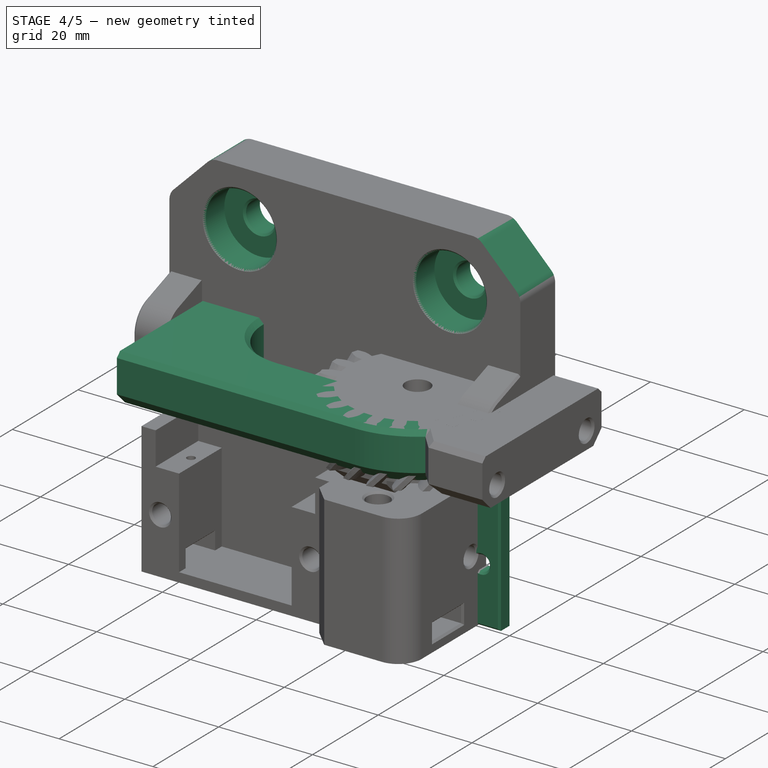
[diagram: stage 4 of 5 — iso view after this stage's code; geometry added in this stage tinted green]
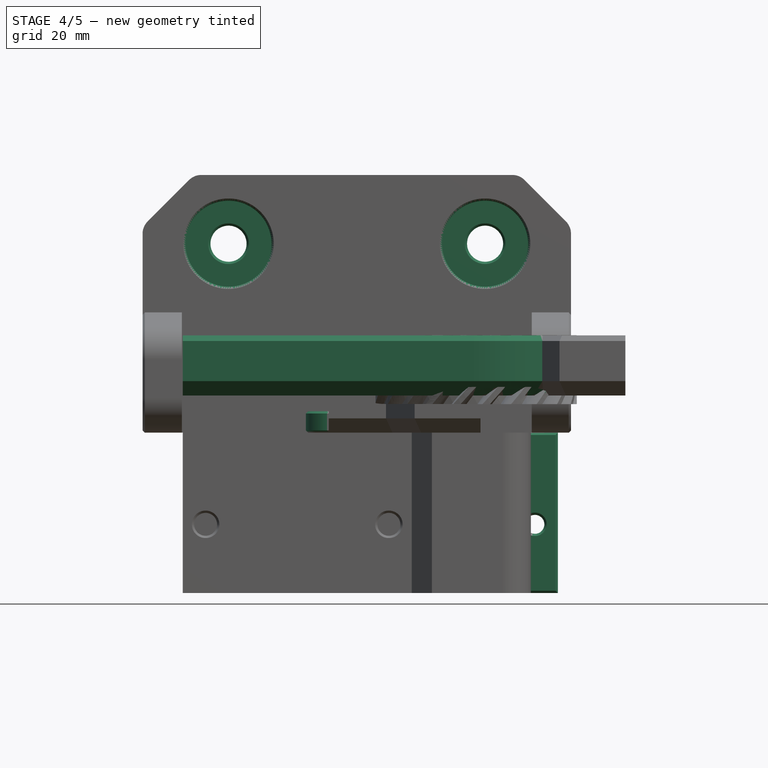
[diagram: stage 4 of 5 — front view after this stage's code; geometry added in this stage tinted green]
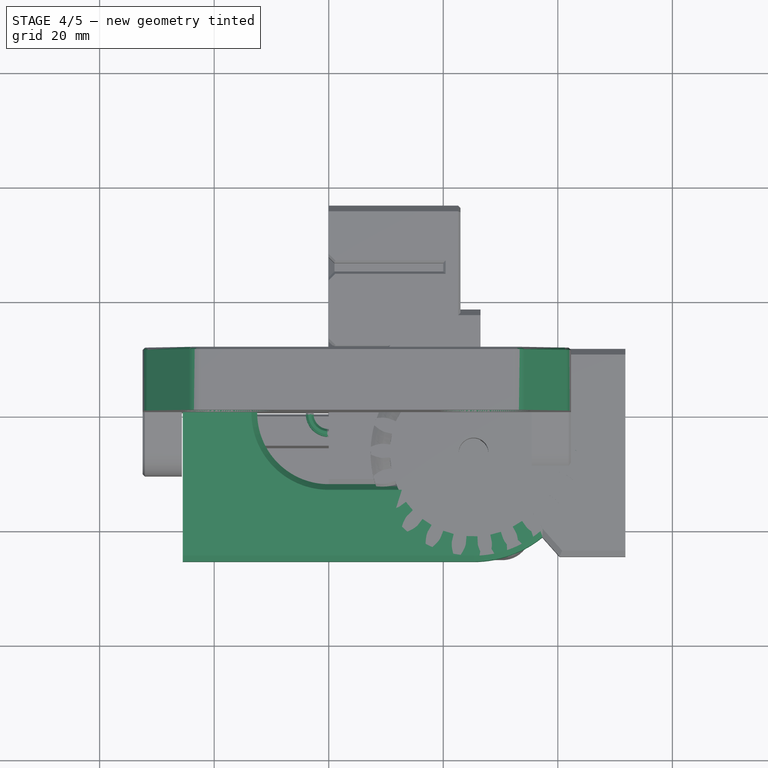
[diagram: stage 4 of 5 — top view after this stage's code; geometry added in this stage tinted green]
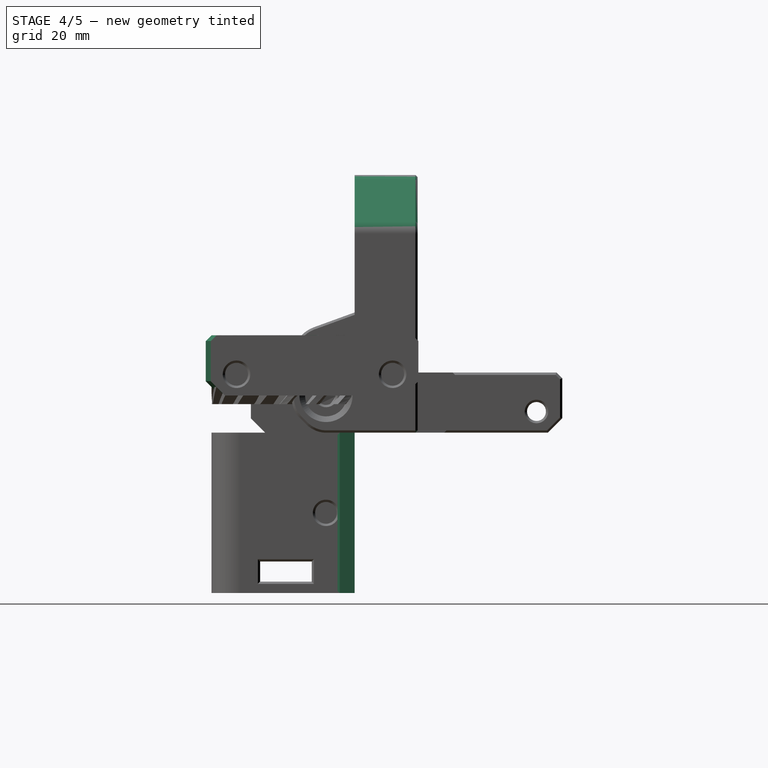
[diagram: stage 4 of 5 — right view after this stage's code; geometry added in this stage tinted green]
FEATURE [PartDesign::Body] Body004  label="arm"
  Group = -> [Sketch016,Pad,Chamfer001,Sketch017,Pocket010,Sketch018,Pocket011,Fillet001,Chamfer002,Chamfer003]
  Origin = -> Origin004
  Placement = pos=(0,0,6.5) rot=(0,0,1;0rad)
  Tip = -> Chamfer003
FEATURE [Part::Feature] Body004001  label="arm001"
  Placement = pos=(0,0,6.5) rot=(0,0,1;0rad)
  shape: bbox 69.8 x 36.25 x 10.5 mm, 38 faces (baked)
FEATURE [Part::Feature] Body001001  label="big-gear001"
  Placement = pos=(25.3,-7,17) rot=(0,1,0;3.14159rad)
  shape: bbox 36.07 x 36.1 x 12.01 mm, 266 faces (baked)
FEATURE [Part::MultiFuse] Fusion  label="arm-gear-baseFusion"
  Shapes = -> [Body001001,Body004001]
FEATURE [PartDesign::FeatureBase] BaseFeature
  BaseFeature = -> Fusion
FEATURE [PartDesign::Plane] DatumPlane
  AttachmentOffset = pos=(0,0,-70) rot=(0,0,1;0rad)
  Length = 61.0995
  MapMode = 5
  Placement = pos=(44.5,0,0) rot=(0.57735,-0.57735,-0.57735;2.0944rad)
  ResizeMode = 0
  Support = -> [BaseFeature]
  Width = 60.0995
FEATURE [Sketcher::SketchObject] Sketch019
  ExternalGeometry = -> [BaseFeature]
  FullyConstrained = true
  MapMode = 5
  Placement = pos=(44.5,0,0) rot=(0.57735,-0.57735,-0.57735;2.0944rad)
  Support = -> [DatumPlane]
  sketch-geometry (1):
    g0: Circle CenterX=16 CenterY=11.75 CenterZ=0 NormalX=0 NormalY=0 NormalZ=1 AngleXU=0 Radius=1.55
  constraints (3):
    c: DistanceY(g0,g-3) = 5.25
    c: DistanceX(g-1,g0) = 16
    c: Radius(g0) = 1.55
FEATURE [PartDesign::Pocket] Pocket012
  BaseFeature = -> BaseFeature
  Length = 68
  Length2 = 100
  Profile = -> Sketch019
  Reversed = true
  Type = 0
FEATURE [Sketcher::SketchObject] Sketch020
  ExternalGeometry = -> [Pocket012]
  FullyConstrained = true
  MapMode = 5
  Placement = pos=(44.5,0,0) rot=(0.57735,-0.57735,-0.57735;2.0944rad)
  Support = -> [DatumPlane]
  sketch-geometry (1):
    g0: Circle CenterX=16 CenterY=11.75 CenterZ=0 NormalX=0 NormalY=0 NormalZ=1 AngleXU=0 Radius=3.2
  constraints (2):
    c: Coincident(g0,g-3)
    c: Radius(g0) = 3.2
FEATURE [PartDesign::Pocket] Pocket013
  BaseFeature = -> Pocket012
  Length = 7
  Length2 = 100
  Profile = -> Sketch020
  Reversed = true
  Type = 0
FEATURE [Sketcher::SketchObject] Sketch025
  FullyConstrained = true
  MapMode = 5
  Support = -> [XY_Plane006]
  sketch-geometry (2):
    g0: Circle CenterX=0 CenterY=0 CenterZ=0 NormalX=0 NormalY=0 NormalZ=1 AngleXU=0 Radius=4
    g1: Circle CenterX=0 CenterY=0 CenterZ=0 NormalX=0 NormalY=0 NormalZ=1 AngleXU=0 Radius=2.65
  constraints (4):
    c: Coincident(g0,g-1)
    c: Coincident(g1,g0)
    c: Radius(g1) = 2.65
    c: Radius(g0) = 4
FEATURE [PartDesign::Pad] Pad006
  Direction = (1,1,1)
  Length = 3.75
  Length2 = 100
  Profile = -> Sketch025
  Type = 0
FEATURE [PartDesign::Chamfer] Chamfer006
  Angle = 45
  Base = -> Pad006 [Face4,Face3]
  BaseFeature = -> Pad006
  ChamferType = 0
  FlipDirection = false
  Size = 0.4
  Size2 = 1
  SupportTransform = false
FEATURE [PartDesign::Body] Body004003  label="spacer"
  Group = -> [Sketch025,Pad006,Chamfer006]
  Origin = -> Origin006
  Placement = pos=(25.3,-7,0) rot=(0,0,1;0rad)
  Tip = -> Chamfer006
FEATURE [Sketcher::SketchObject] Sketch026
  FullyConstrained = true
  MapMode = 5
  Placement = pos=(-0.0030709,0.000967847,16.9969) rot=(-0.300592,-0.953753,2.7e-05;0.000189rad)
  Support = -> [Pocket013]
  sketch-geometry (1):
    g0: Circle CenterX=25.3 CenterY=-7 CenterZ=0 NormalX=0 NormalY=0 NormalZ=1 AngleXU=0 Radius=2.6
  constraints (3):
    c: DistanceX(g-1,g0) = 25.3
    c: DistanceY(g0,g-1) = 7
    c: Radius(g0) = 2.6
FEATURE [PartDesign::Pocket] Pocket019
  BaseFeature = -> Pocket013
  Length = 5
  Length2 = 100
  Profile = -> Sketch026
  Type = 1
FEATURE [PartDesign::Body] Body004002  label="arm-gear"
  BaseFeature = -> Fusion
  Group = -> [BaseFeature,DatumPlane,Sketch019,Pocket012,Sketch020,Pocket013,Sketch026,Pocket019]
  Origin = -> Origin005
  Tip = -> Pocket019
FEATURE [Sketcher::SketchObject] Sketch027
  FullyConstrained = true
  MapMode = 5
  Placement = pos=(0,0,0) rot=(1,0,0;1.5708rad)
  Support = -> [XZ_Plane007]
  sketch-geometry (6):
    g0: LineSegment StartX=0 StartY=0 StartZ=0 EndX=40 EndY=0 EndZ=0
    g1: LineSegment StartX=40 StartY=0 StartZ=0 EndX=40 EndY=-28 EndZ=0
    g2: LineSegment StartX=40 StartY=-28 StartZ=0 EndX=0 EndY=-28 EndZ=0
    g3: LineSegment StartX=0 StartY=-28 StartZ=0 EndX=0 EndY=0 EndZ=0
    g4: Circle CenterX=4 CenterY=-16 CenterZ=0 NormalX=0 NormalY=0 NormalZ=1 AngleXU=0 Radius=1.65
    g5: Circle CenterX=36 CenterY=-16 CenterZ=0 NormalX=0 NormalY=0 NormalZ=1 AngleXU=0 Radius=1.65
  constraints (17):
    c: Coincident(g0,g1)
    c: Coincident(g1,g2)
    c: Coincident(g2,g3)
    c: Coincident(g3,g0)
    c: Horizontal(g0)
    c: Horizontal(g2)
    c: Vertical(g1)
    c: Vertical(g3)
    c: Coincident(g0,g-1)
    c: DistanceX(g2,g2) = 40
    c: DistanceY(g3,g3) = 28
    c: Horizontal(g5,g4)
    c: Equal(g4,g5)
    c: Radius(g5) = 1.65
    c: DistanceX(g2,g4) = 4
    c: DistanceX(g5,g1) = 4
    c: DistanceY(g2,g4) = 12
FEATURE [PartDesign::Pad] Pad007
  Direction = (1,1,1)
  Length = 3
  Length2 = 100
  Placement = pos=(0,0,0) rot=(1,0,0;1.5708rad)
  Profile = -> Sketch027
  Type = 0
FEATURE [PartDesign::Chamfer] Chamfer007
  Angle = 45
  Base = -> Pad007 [Face8]
  BaseFeature = -> Pad007
  ChamferType = 0
  FlipDirection = false
  Placement = pos=(0,0,0) rot=(1,0,0;1.5708rad)
  Size = 0.4
  Size2 = 1
  SupportTransform = false
FEATURE [Sketcher::SketchObject] Sketch034
  ExternalGeometry = -> [Pad009]
  FullyConstrained = true
  MapMode = 5
  Placement = pos=(0,11,0) rot=(0,0.707107,0.707107;3.14159rad)
  Support = -> [Pad009]
  sketch-geometry (2):
    g0: Circle CenterX=-27.3 CenterY=33 CenterZ=0 NormalX=0 NormalY=0 NormalZ=1 AngleXU=0 Radius=3.15
    g1: Circle CenterX=17.5 CenterY=33 CenterZ=0 NormalX=0 NormalY=0 NormalZ=1 AngleXU=0 Radius=3.15
  constraints (6):
    c: Horizontal(g1,g0)
    c: DistanceX(g-3,g0) = 15
    c: DistanceX(g1,g-4) = 15
    c: Equal(g1,g0)
    c: Radius(g0) = 3.15
    c: DistanceY(g1,g-4) = 12
FEATURE [PartDesign::Pocket] Pocket024
  BaseFeature = -> Pad009
  Length = 5
  Length2 = 100
  Profile = -> Sketch034
  Type = 1
FEATURE [Sketcher::SketchObject] Sketch035
  ExternalGeometry = -> [Pocket024]
  FullyConstrained = true
  MapMode = 5
  Placement = pos=(0,0,0) rot=(1,0,0;1.5708rad)
  Support = -> [Pocket024]
  sketch-geometry (2):
    g0: Circle CenterX=-17.5 CenterY=33 CenterZ=0 NormalX=0 NormalY=0 NormalZ=1 AngleXU=0 Radius=7.5
    g1: Circle CenterX=27.3 CenterY=33 CenterZ=0 NormalX=0 NormalY=0 NormalZ=1 AngleXU=0 Radius=7.5
  constraints (4):
    c: Coincident(g0,g-3)
    c: Coincident(g1,g-4)
    c: Equal(g1,g0)
    c: Radius(g0) = 7.5
FEATURE [PartDesign::Pocket] Pocket025
  BaseFeature = -> Pocket024
  Length = 6
  Length2 = 100
  Profile = -> Sketch035
  Type = 0
FEATURE [PartDesign::Chamfer] Chamfer011
  Angle = 45
  Base = -> Pocket025 [Edge62,Edge29]
  BaseFeature = -> Pocket025
  ChamferType = 0
  FlipDirection = false
  Size = 9
  Size2 = 1
  SupportTransform = false
FEATURE [PartDesign::Fillet] Fillet005
  Base = -> Chamfer011 [Edge34,Edge36,Edge12,Edge2]
  BaseFeature = -> Chamfer011
  Radius = 3
  Refine = true
  SupportTransform = false
FEATURE [PartDesign::Chamfer] Chamfer012
  Angle = 45
  Base = -> Fillet005 [Face59,Edge99,Edge80,Edge113,Edge79,Edge116,Edge102,Edge131,Edge120,Edge24,Edge45]
  BaseFeature = -> Fillet005
  ChamferType = 0
  FlipDirection = false
  Size = 0.4
  Size2 = 1
  SupportTransform = false
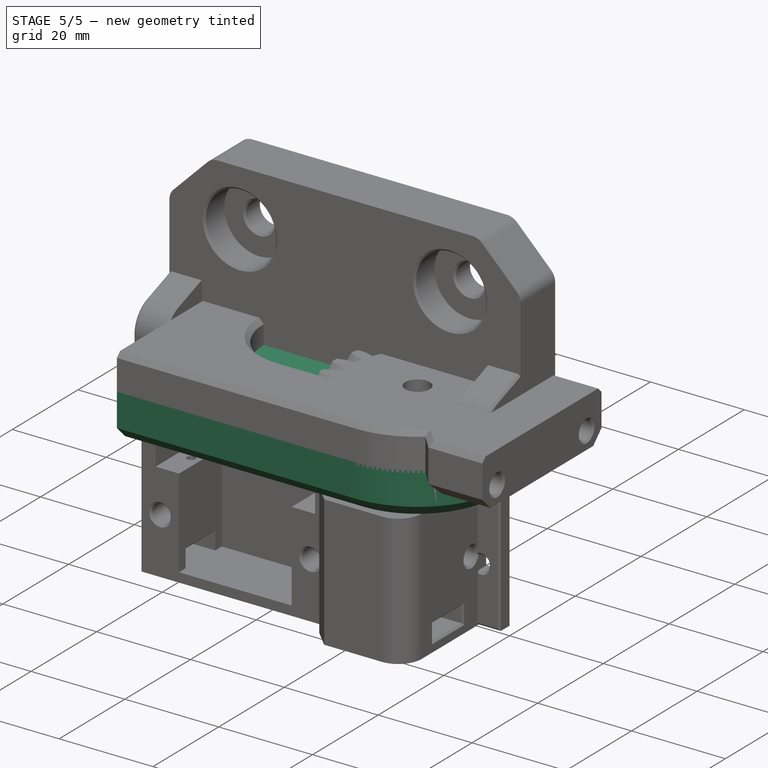
[diagram: stage 5 of 5 — iso view after this stage's code; geometry added in this stage tinted green]
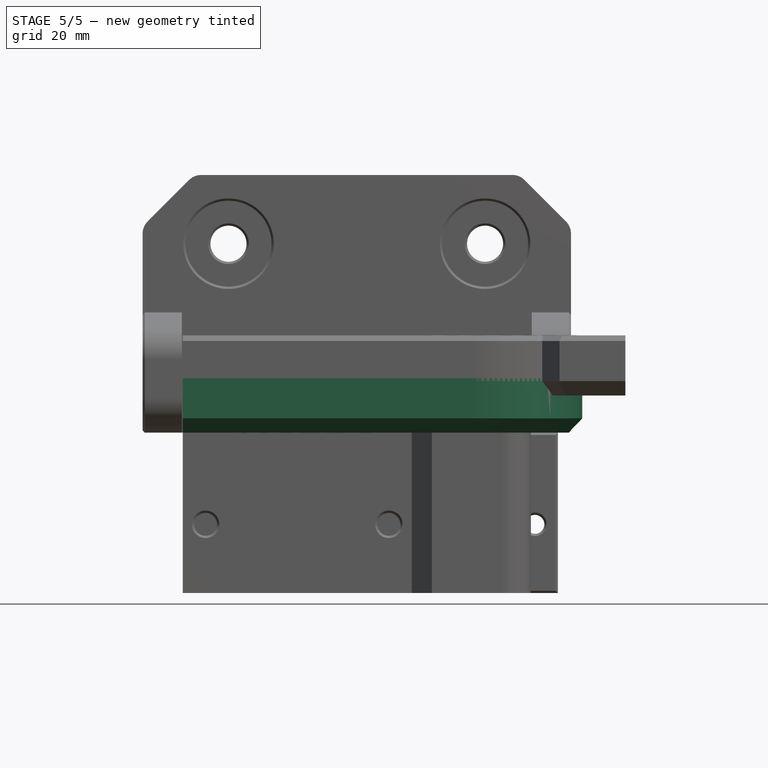
[diagram: stage 5 of 5 — front view after this stage's code; geometry added in this stage tinted green]
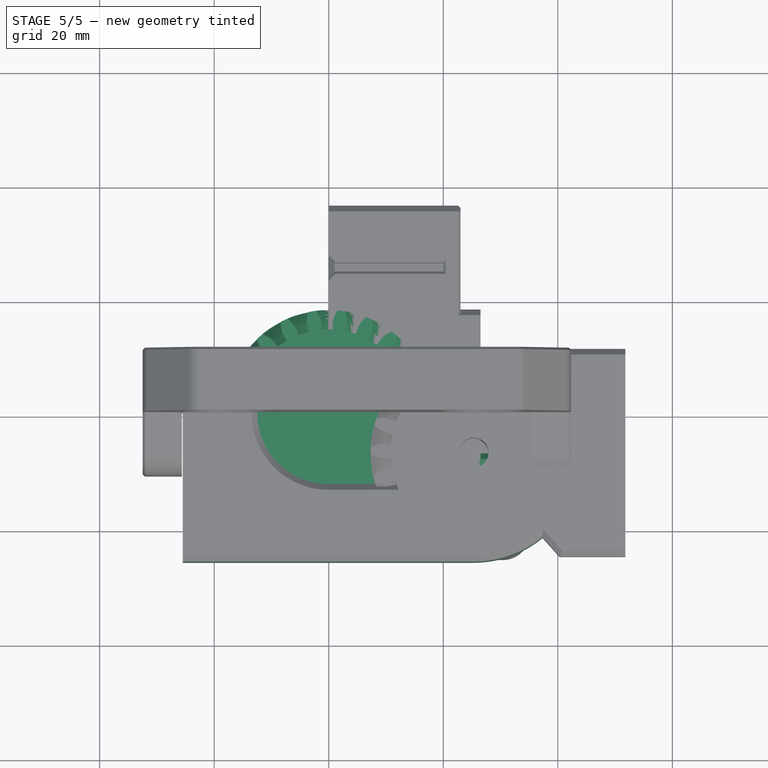
[diagram: stage 5 of 5 — top view after this stage's code; geometry added in this stage tinted green]
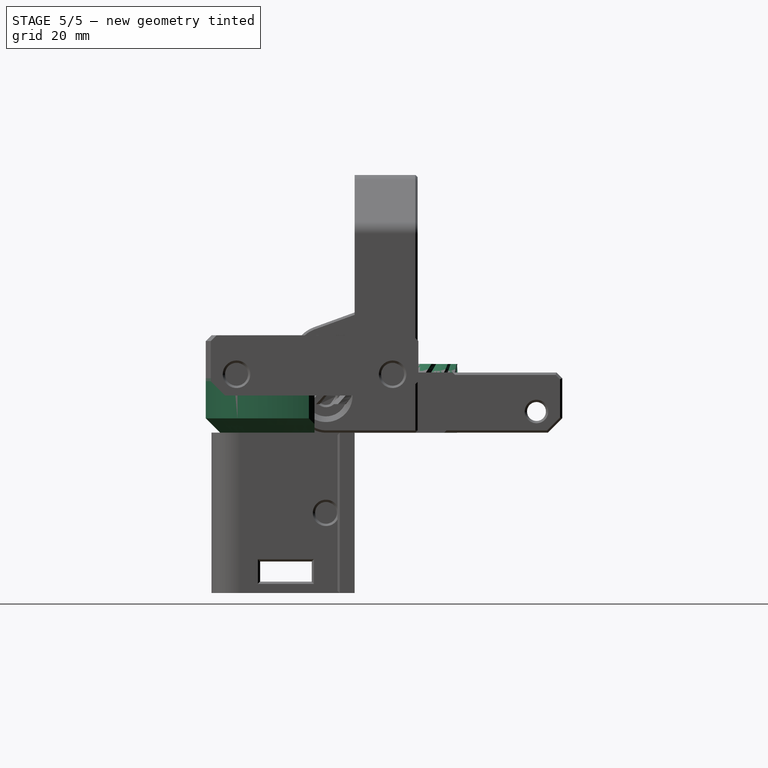
[diagram: stage 5 of 5 — right view after this stage's code; geometry added in this stage tinted green]
FEATURE [PartDesign::FeaturePython] InvoluteGear  # WARN: FeaturePython — macro-defined, semantics opaque (R4)
  AttacherType = Attacher::AttachEngine3D
  angular_backlash = 0
  backlash = 0
  beta = 40
  clearance = 0.25
  da = 22.5
  df = 15.75
  double_helix = true
  dw = 19.5
  head = 0
  head_fillet = 0
  height = 12
  module = 1.5
  numpoints = 6
  pressure_angle = 15
  properties_from_tool = false
  reversed_backlash = false
  root_fillet = 0
  shift = 0
  simple = false
  teeth = 13
  transverse_pitch = 4.71239
  undercut = false
  version = 0.0.4
  expr: dw = teeth * module
  expr: angular_backlash = backlash / dw * 360° / pi
FEATURE [Sketcher::SketchObject] Sketch
  FullyConstrained = true
  MapMode = 5
  Placement = pos=(8.61926e-10,4.89366e-10,-9.9557e-05) rot=(1,0,4e-06;3.1416rad)
  Support = -> [InvoluteGear]
  sketch-geometry (8):
    g0: ArcOfCircle CenterX=0 CenterY=0 CenterZ=0 NormalX=0 NormalY=0 NormalZ=1 AngleXU=0 Radius=6.75 StartAngle=4.41158 EndAngle=5.0132
    g1: ArcOfCircle CenterX=0 CenterY=0 CenterZ=0 NormalX=0 NormalY=0 NormalZ=1 AngleXU=0 Radius=3.5 StartAngle=2.17904 EndAngle=4.10414
    g2: LineSegment StartX=-2 StartY=6.4469 StartZ=0 EndX=-2 EndY=2.87228 EndZ=0
    g3: LineSegment StartX=2 StartY=6.4469 StartZ=0 EndX=2 EndY=2.87228 EndZ=0
    g4: ArcOfCircle CenterX=0 CenterY=0 CenterZ=0 NormalX=0 NormalY=0 NormalZ=1 AngleXU=0 Radius=6.75 StartAngle=1.26998 EndAngle=1.87161
    g5: ArcOfCircle CenterX=0 CenterY=0 CenterZ=0 NormalX=0 NormalY=0 NormalZ=1 AngleXU=0 Radius=3.5 StartAngle=5.32063 EndAngle=7.24574
    g6: LineSegment StartX=2 StartY=-2.87228 StartZ=0 EndX=2 EndY=-6.4469 EndZ=0
    g7: LineSegment StartX=-2 StartY=-2.87228 StartZ=0 EndX=-2 EndY=-6.4469 EndZ=0
  constraints (22):
    c: Coincident(g0,g-1)
    c: Coincident(g1,g0)
    c: Radius(g0) = 6.75
    c: Radius(g1) = 3.5
    c: Vertical(g2)
    c: Vertical(g3)
    c: DistanceX(g2,g0) = 2
    c: DistanceX(g2,g3) = 4
    c: Coincident(g0,g7)
    c: Coincident(g4,g2)
    c: Equal(g0,g4)
    c: Coincident(g0,g6)
    c: Coincident(g4,g3)
    c: Coincident(g0,g4)
    c: Equal(g1,g5)
    c: Coincident(g1,g5)
    c: Coincident(g3,g5)
    c: Coincident(g6,g5)
    c: Tangent(g3,g6)
    c: Coincident(g2,g1)
    c: Coincident(g7,g1)
    c: Tangent(g2,g7)
FEATURE [PartDesign::Pocket] Pocket
  BaseFeature = -> InvoluteGear
  Length = 4
  Length2 = 100
  Profile = -> Sketch
  Type = 0
FEATURE [PartDesign::Fillet] Fillet
  Base = -> Pocket [Edge408,Edge410,Edge400,Edge402]
  BaseFeature = -> Pocket
  Radius = 0.5
  SupportTransform = false
FEATURE [Sketcher::SketchObject] Sketch013
  FullyConstrained = true
  MapMode = 5
  Placement = pos=(-3.46296e-05,-1.96612e-05,3.9999) rot=(1,0,4e-06;3.1416rad)
  Support = -> [Fillet]
  sketch-geometry (1):
    g0: Circle CenterX=0 CenterY=0 CenterZ=0 NormalX=0 NormalY=0 NormalZ=1 AngleXU=0 Radius=1.4
  constraints (2):
    c: Coincident(g0,g-1)
    c: Radius(g0) = 1.4
FEATURE [PartDesign::Pocket] Pocket008
  BaseFeature = -> Fillet
  Length = 5
  Length2 = 100
  Profile = -> Sketch013
  Type = 1
FEATURE [Sketcher::SketchObject] Sketch014
  FullyConstrained = true
  MapMode = 5
  Placement = pos=(0.000103892,5.89857e-05,12.0001) rot=(-0.493731,0.869615,-2e-06;1e-05rad)
  Support = -> [Pocket008]
  sketch-geometry (1):
    g0: Circle CenterX=0 CenterY=0 CenterZ=0 NormalX=0 NormalY=0 NormalZ=1 AngleXU=0 Radius=2.3
  constraints (2):
    c: Coincident(g0,g-1)
    c: Radius(g0) = 2.3
FEATURE [PartDesign::Pocket] Pocket009
  BaseFeature = -> Pocket008
  Length = 4
  Length2 = 100
  Profile = -> Sketch014
  Type = 0
FEATURE [PartDesign::Chamfer] Chamfer
  Angle = 45
  Base = -> Pocket009 [Edge430]
  BaseFeature = -> Pocket009
  ChamferType = 0
  FlipDirection = false
  Size = 0.4
  Size2 = 1
  SupportTransform = false
FEATURE [PartDesign::Body] Body  label="small-gear"
  Group = -> [InvoluteGear,Sketch,Pocket,Fillet,Sketch013,Pocket008,Sketch014,Pocket009,Chamfer]
  Origin = -> Origin
  Placement = pos=(0,0,5) rot=(0,0,1;0rad)
  Tip = -> Chamfer
FEATURE [PartDesign::FeaturePython] InvoluteGear001  # WARN: FeaturePython — macro-defined, semantics opaque (R4)
  AttacherType = Attacher::AttachEngine3D
  angular_backlash = 0
  backlash = 0
  beta = 40
  clearance = 0.25
  da = 36
  df = 29.25
  double_helix = true
  dw = 33
  head = 0
  head_fillet = 0
  height = 12
  module = 1.5
  numpoints = 6
  pressure_angle = 15
  properties_from_tool = false
  reversed_backlash = false
  root_fillet = 0
  shift = 0
  simple = false
  teeth = 22
  transverse_pitch = 4.71239
  undercut = false
  version = 0.0.4
  expr: dw = teeth * module
  expr: angular_backlash = backlash / dw * 360° / pi
FEATURE [PartDesign::Body] Body001  label="big-gear"
  Group = -> [InvoluteGear001]
  Origin = -> Origin001
  Placement = pos=(25.3,-7,17) rot=(0,1,0;3.14159rad)
  Tip = -> InvoluteGear001
FEATURE [Part::Feature] Part__Feature008001001001  label="SOLID005"
  Placement = pos=(0,12,3.25) rot=(0,0,1;0rad)
  shape: bbox 72.25 x 56.4 x 25 mm, 44 faces (baked)
FEATURE [Sketcher::SketchObject] Sketch016
  FullyConstrained = true
  MapMode = 5
  Support = -> [XY_Plane004]
  sketch-geometry (10):
    g0: GeomPoint X=25.3 Y=-7 Z=0
    g1: LineSegment StartX=-12.5 StartY=9.2e-15 StartZ=0 EndX=-12.5 EndY=10.25 EndZ=0
    g2: LineSegment StartX=-12.5 StartY=10.25 StartZ=0 EndX=-25.5 EndY=10.25 EndZ=0
    g3: LineSegment StartX=-25.5 StartY=10.25 StartZ=0 EndX=-25.5 EndY=-26 EndZ=0
    g4: ArcOfCircle CenterX=25.3 CenterY=-7 CenterZ=0 NormalX=0 NormalY=0 NormalZ=1 AngleXU=0 Radius=19 StartAngle=4.71239 EndAngle=6.28319
    g5: LineSegment StartX=-25.5 StartY=-26 StartZ=0 EndX=25.3 EndY=-26 EndZ=0
    g6: ArcOfCircle CenterX=0 CenterY=9.2e-15 CenterZ=0 NormalX=0 NormalY=0 NormalZ=1 AngleXU=0 Radius=12.5 StartAngle=3.14159 EndAngle=4.71239
    g7: LineSegment StartX=44.3 StartY=-7 StartZ=0 EndX=25.3 EndY=-7 EndZ=0
    g8: LineSegment StartX=25.3 StartY=-7 StartZ=0 EndX=25.3 EndY=-12.5 EndZ=0
    g9: LineSegment StartX=25.3 StartY=-12.5 StartZ=0 EndX=-3.6e-15 EndY=-12.5 EndZ=0
  constraints (28):
    c: DistanceX(g-1,g0) = 25.3
    c: DistanceY(g0,g-1) = 7
    c: Coincident(g1,g2)
    c: Horizontal(g2)
    c: Coincident(g2,g3)
    c: Vertical(g3)
    c: Coincident(g4,g0)
    c: Vertical(g4,g4)
    c: Radius(g4) = 19
    c: Horizontal(g4,g3)
    c: DistanceY(g3,g3) = 36.25
    c: Horizontal(g4,g4)
    c: Coincident(g5,g3)
    c: Coincident(g5,g4)
    c: Coincident(g6,g-1)
    c: Coincident(g6,g1)
    c: PointOnObject(g6,g-2)
    c: Radius(g6) = 12.5
    c: Horizontal(g1,g6)
    c: Vertical(g1)
    c: DistanceX(g2,g6) = 25.5
    c: Coincident(g4,g7)
    c: Coincident(g7,g8)
    c: Vertical(g8)
    c: Coincident(g8,g9)
    c: Coincident(g9,g6)
    c: Coincident(g7,g4)
    c: Horizontal(g9)
FEATURE [PartDesign::Pad] Pad
  Direction = (1,1,1)
  Length = 10.5
  Length2 = 100
  Profile = -> Sketch016
  Type = 0
FEATURE [PartDesign::Chamfer] Chamfer001
  Angle = 45
  Base = -> Pad [Edge14]
  BaseFeature = -> Pad
  ChamferType = 0
  FlipDirection = false
  Size = 1
  Size2 = 1
  SupportTransform = false
FEATURE [Sketcher::SketchObject] Sketch017
  ExternalGeometry = -> [Chamfer001]
  FullyConstrained = true
  MapMode = 5
  Placement = pos=(-25.5,0,0) rot=(0.57735,-0.57735,-0.57735;2.0944rad)
  Support = -> [Chamfer001]
  sketch-geometry (2):
    g0: Circle CenterX=-5.75 CenterY=3.7 CenterZ=0 NormalX=0 NormalY=0 NormalZ=1 AngleXU=0 Radius=1.6
    g1: Circle CenterX=21.5 CenterY=3.7 CenterZ=0 NormalX=0 NormalY=0 NormalZ=1 AngleXU=0 Radius=1.6
  constraints (6):
    c: Horizontal(g1,g0)
    c: Equal(g0,g1)
    c: Radius(g0) = 1.6
    c: DistanceX(g-3,g0) = 4.5
    c: DistanceX(g1,g-4) = 4.5
    c: DistanceY(g-3,g0) = 3.7
FEATURE [PartDesign::Pocket] Pocket010
  BaseFeature = -> Chamfer001
  Length = 12
  Length2 = 100
  Profile = -> Sketch017
  Type = 0
FEATURE [Sketcher::SketchObject] Sketch018
  ExternalGeometry = -> [Pocket010]
  FullyConstrained = true
  MapMode = 5
  Placement = pos=(-25.5,0,0) rot=(0.57735,-0.57735,-0.57735;2.0944rad)
  Support = -> [Pocket010]
  sketch-geometry (2):
    g0: Circle CenterX=-5.75 CenterY=3.7 CenterZ=0 NormalX=0 NormalY=0 NormalZ=1 AngleXU=0 Radius=1.95
    g1: Circle CenterX=21.5 CenterY=3.7 CenterZ=0 NormalX=0 NormalY=0 NormalZ=1 AngleXU=0 Radius=1.95
  constraints (4):
    c: Coincident(g0,g-3)
    c: Coincident(g1,g-4)
    c: Equal(g0,g1)
    c: Radius(g0) = 1.95
FEATURE [PartDesign::Pocket] Pocket011
  BaseFeature = -> Pocket010
  Length = 5
  Length2 = 100
  Profile = -> Sketch018
  Type = 0
FEATURE [PartDesign::Fillet] Fillet001
  Base = -> Pocket011 [Edge30]
  BaseFeature = -> Pocket011
  Radius = 5
  SupportTransform = false
FEATURE [PartDesign::Chamfer] Chamfer002
  Angle = 45
  Base = -> Fillet001 [Edge14,Edge24,Edge16,Edge22,Edge26,Edge28,Edge32,Edge35,Edge34,Edge30]
  BaseFeature = -> Fillet001
  ChamferType = 0
  FlipDirection = false
  Size = 1
  Size2 = 1
  SupportTransform = false
FEATURE [PartDesign::Chamfer] Chamfer003
  Angle = 45
  Base = -> Chamfer002 [Edge3,Edge13]
  BaseFeature = -> Chamfer002
  ChamferType = 0
  FlipDirection = false
  Size = 2.5
  Size2 = 1
  SupportTransform = false
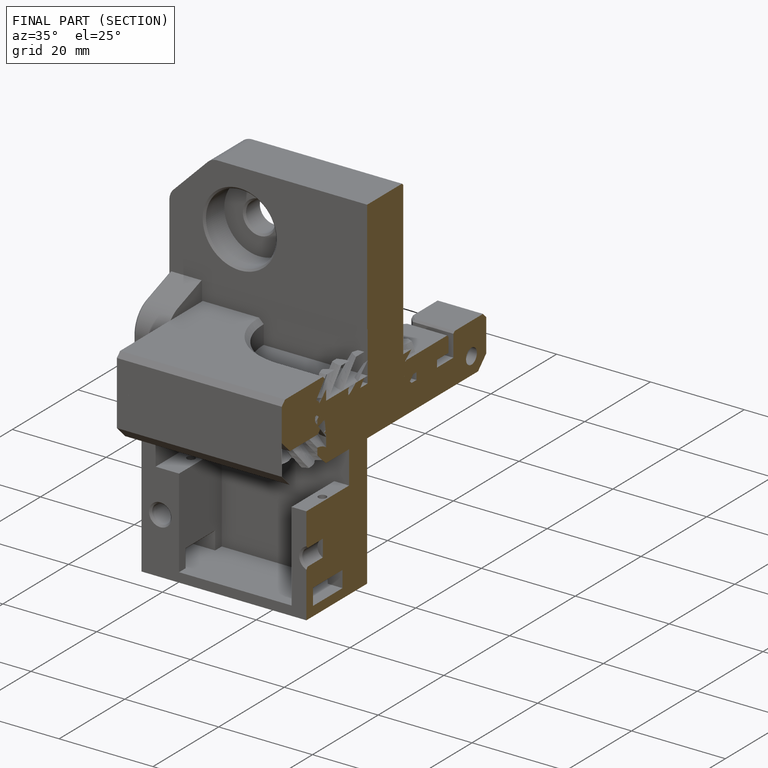
[diagram: finished part — half-section view (interior)]
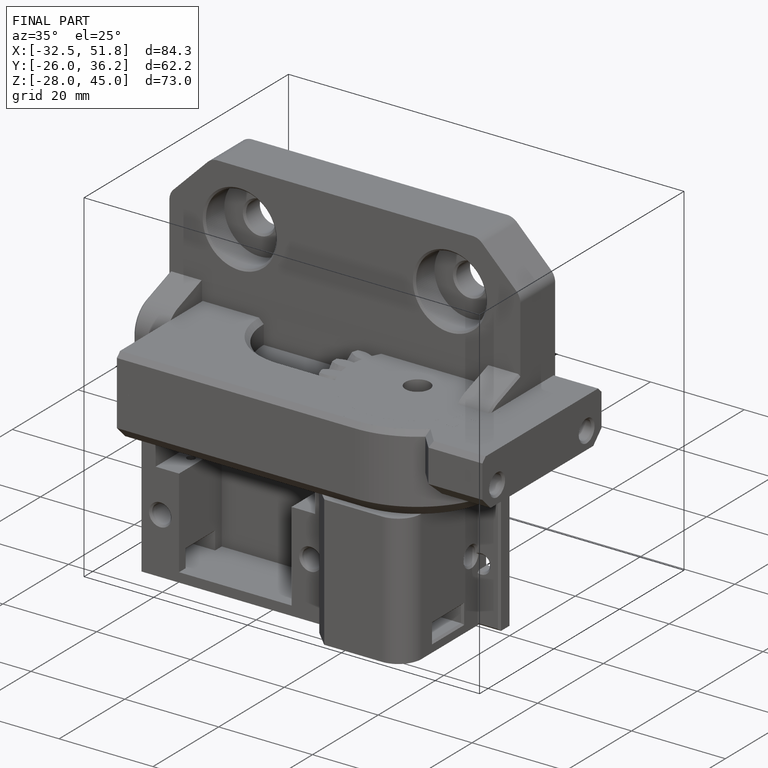
[diagram: finished part — iso view with bounding-box wireframe]
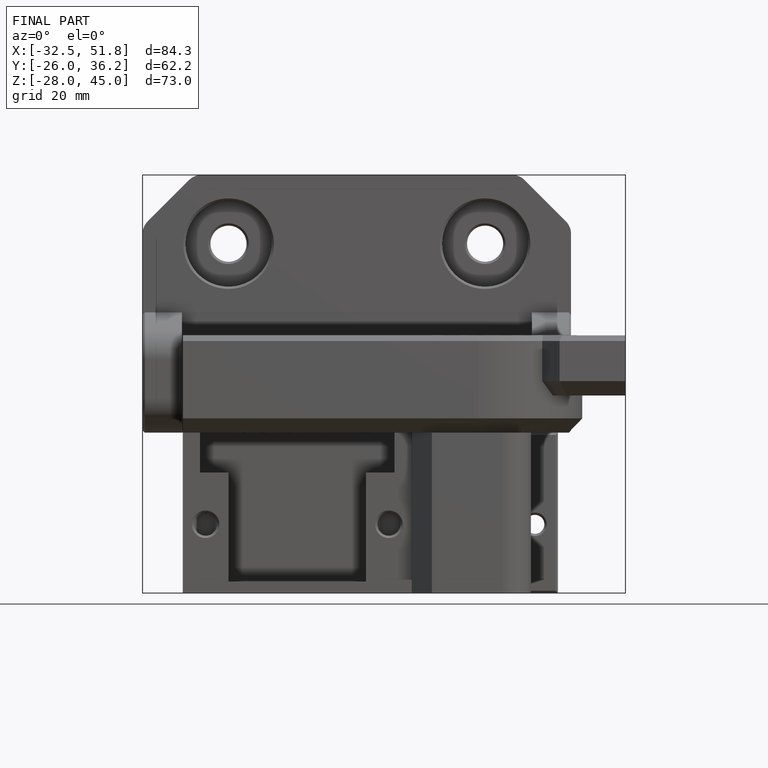
[diagram: finished part — front view with bounding-box wireframe]
